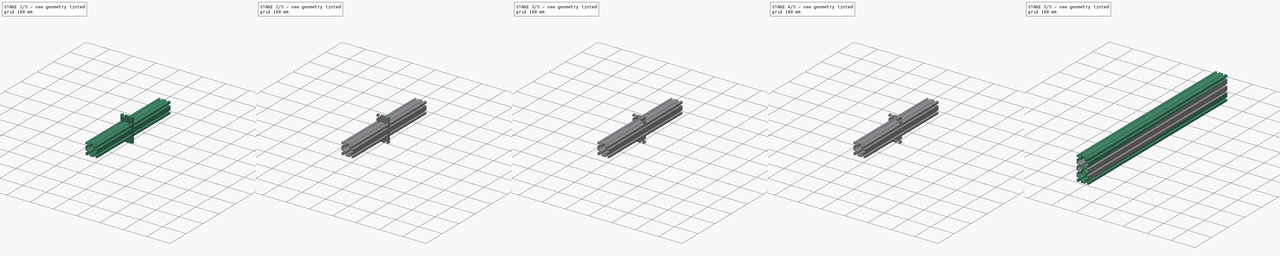
[diagram: build sequence overview — one tinted view per stage of 5, left to right]
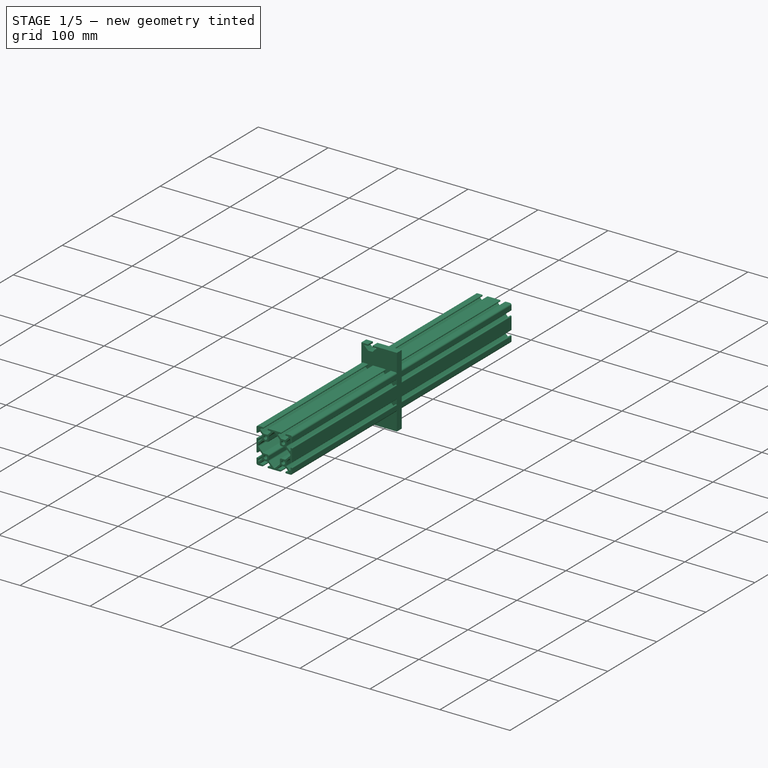
[diagram: stage 1 of 5 — iso view after this stage's code; geometry added in this stage tinted green]
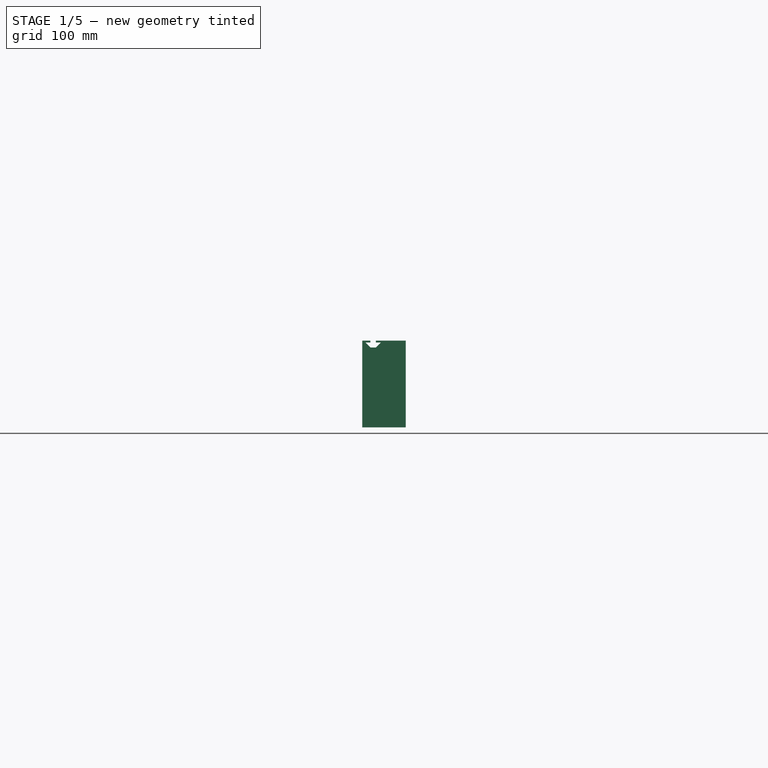
[diagram: stage 1 of 5 — front view after this stage's code; geometry added in this stage tinted green]
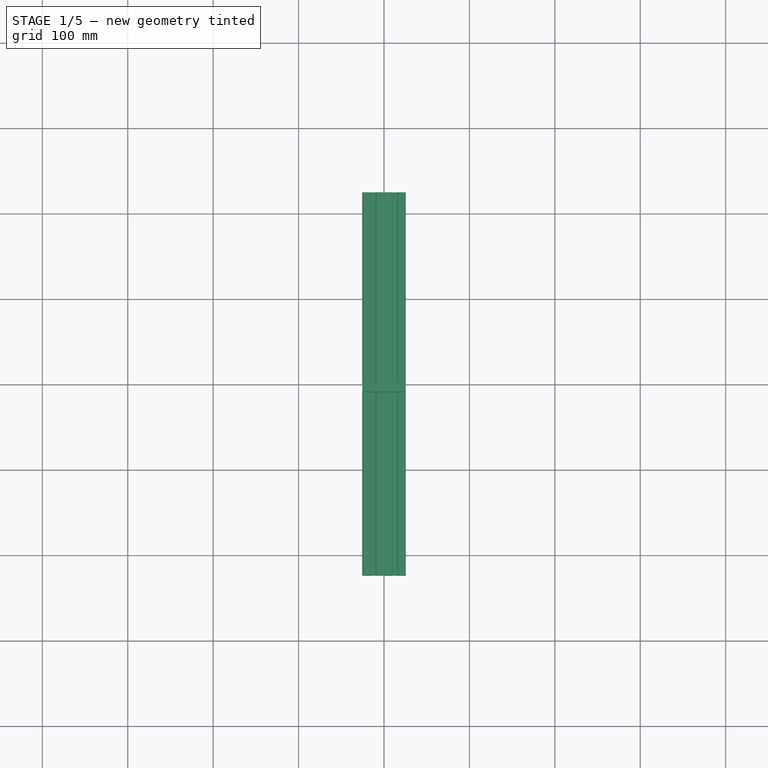
[diagram: stage 1 of 5 — top view after this stage's code; geometry added in this stage tinted green]
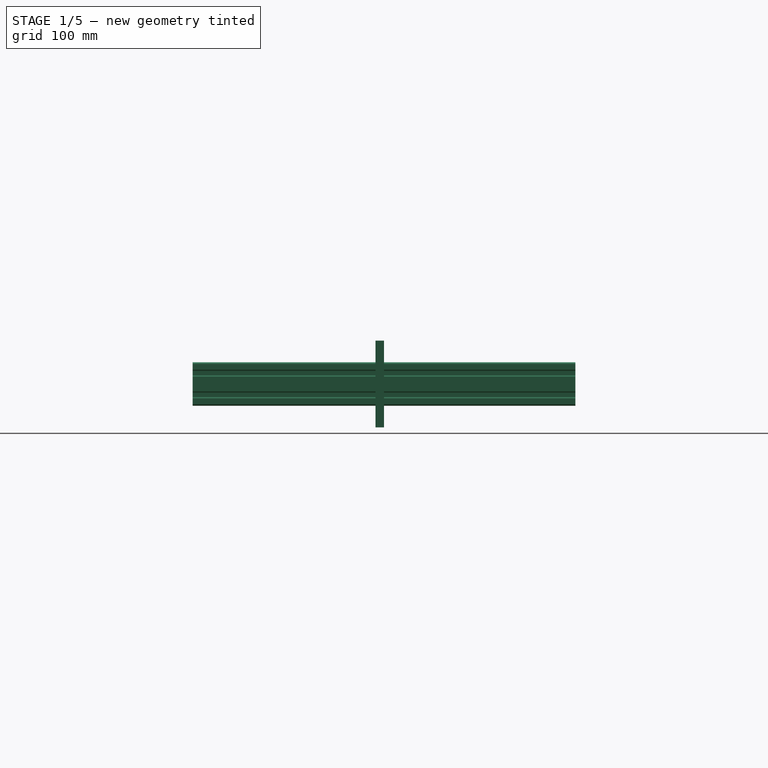
[diagram: stage 1 of 5 — right view after this stage's code; geometry added in this stage tinted green]
FCSTD DOCUMENT  (FreeCAD 2021.614R24301 +3747 (Git))
Label: Extrusion
License: Creative Commons Attribution
LicenseURL: http://creativecommons.org/licenses/by/4.0/
objects: Sketcher::SketchObject×12, PartDesign::Fillet×8, PartDesign::Pocket×6, PartDesign::Pad×5, PartDesign::Body×5, PartDesign::Mirrored×5, PartDesign::ShapeBinder×3, PartDesign::MultiTransform×2, PartDesign::LinearPattern×1, App::DocumentObjectGroup×1
note: 101 computed .brp shape members not serialized (recipe doc carries the construction recipe); baked Part::Feature solids carry a one-line shape summary decoded from their .brp

FEATURE [Sketcher::SketchObject] Sketch
  FullyConstrained = false
  MapMode = 5
  Placement = pos=(0,0,0) rot=(1,0,0;1.5708rad)
  sketch-geometry (173):
    g0: LineSegment [constr] StartX=-25.4 StartY=25.4 StartZ=0 EndX=25.4 EndY=25.4 EndZ=0
    g1: LineSegment [constr] StartX=25.4 StartY=25.4 StartZ=0 EndX=25.4 EndY=-25.4 EndZ=0
    g2: LineSegment [constr] StartX=25.4 StartY=-25.4 StartZ=0 EndX=-25.4 EndY=-25.4 EndZ=0
    g3: LineSegment [constr] StartX=-25.4 StartY=-25.4 StartZ=0 EndX=-25.4 EndY=25.4 EndZ=0
    g4: Circle CenterX=-12.7 CenterY=12.7 CenterZ=0 NormalX=0 NormalY=0 NormalZ=1 AngleXU=0 Radius=2.6035
    g5: Circle CenterX=12.7 CenterY=12.7 CenterZ=0 NormalX=0 NormalY=0 NormalZ=1 AngleXU=0 Radius=2.6035
    g6: Circle CenterX=12.7 CenterY=-12.7 CenterZ=0 NormalX=0 NormalY=0 NormalZ=1 AngleXU=0 Radius=2.6035
    g7: Circle CenterX=-12.7 CenterY=-12.7 CenterZ=0 NormalX=0 NormalY=0 NormalZ=1 AngleXU=0 Radius=2.6035
    g8: LineSegment [constr] StartX=-12.7 StartY=12.7 StartZ=0 EndX=12.7 EndY=12.7 EndZ=0
    g9: LineSegment [constr] StartX=12.7 StartY=12.7 StartZ=0 EndX=12.7 EndY=-12.7 EndZ=0
    g10: LineSegment [constr] StartX=-17.3482 StartY=17.3482 StartZ=0 EndX=-8.0518 EndY=17.3482 EndZ=0
    g11: LineSegment StartX=-8.0518 StartY=14.9572 StartZ=0 EndX=-8.0518 EndY=10.0518 EndZ=0
    g12: LineSegment StartX=-10.0518 StartY=8.0518 StartZ=0 EndX=-14.9572 EndY=8.0518 EndZ=0
    g13: LineSegment [constr] StartX=-17.3482 StartY=8.0518 StartZ=0 EndX=-17.3482 EndY=17.3482 EndZ=0
    g14: ArcOfCircle CenterX=-10.0518 CenterY=10.0518 CenterZ=0 NormalX=0 NormalY=0 NormalZ=1 AngleXU=0 Radius=2 StartAngle=4.71239 EndAngle=6.28319
    g15: GeomPoint [constr] X=-8.0518 Y=8.0518 Z=0
    g16: LineSegment StartX=-25.4 StartY=15.9512 StartZ=0 EndX=-25.4 EndY=23.1902 EndZ=0
    g17: LineSegment StartX=-23.1902 StartY=25.4 StartZ=0 EndX=-15.9512 EndY=25.4 EndZ=0
    g18: LineSegment StartX=-15.9512 StartY=25.4 StartZ=0 EndX=-15.9512 EndY=23.1902 EndZ=0
    g19: LineSegment StartX=-15.9512 StartY=23.1902 StartZ=0 EndX=-21.6276 EndY=23.1902 EndZ=0
    g20: LineSegment StartX=-21.6276 StartY=23.1902 StartZ=0 EndX=-16.3714 EndY=17.934 EndZ=0
    g21: LineSegment StartX=-14.9572 StartY=17.3482 StartZ=0 EndX=-10.4428 EndY=17.3482 EndZ=0
    g22: LineSegment StartX=-9.02858 StartY=17.934 StartZ=0 EndX=-3.77236 EndY=23.1902 EndZ=0
    g23: LineSegment StartX=-3.77236 StartY=23.1902 StartZ=0 EndX=-9.4488 EndY=23.1902 EndZ=0
    g24: LineSegment StartX=-9.4488 StartY=23.1902 StartZ=0 EndX=-9.4488 EndY=25.4 EndZ=0
    g25: LineSegment StartX=-9.4488 StartY=25.4 StartZ=0 EndX=9.4488 EndY=25.4 EndZ=0
    g26: LineSegment StartX=9.4488 StartY=25.4 StartZ=0 EndX=9.4488 EndY=23.1902 EndZ=0
    g27: LineSegment StartX=9.4488 StartY=23.1902 StartZ=0 EndX=3.77236 EndY=23.1902 EndZ=0
    g28: LineSegment StartX=3.77236 StartY=23.1902 StartZ=0 EndX=9.02858 EndY=17.934 EndZ=0
    g29: LineSegment StartX=10.4428 StartY=17.3482 StartZ=0 EndX=14.9572 EndY=17.3482 EndZ=0
    g30: LineSegment StartX=16.3714 StartY=17.934 StartZ=0 EndX=21.6276 EndY=23.1902 EndZ=0
    g31: LineSegment StartX=21.6276 StartY=23.1902 StartZ=0 EndX=15.9512 EndY=23.1902 EndZ=0
    g32: LineSegment StartX=15.9512 StartY=23.1902 StartZ=0 EndX=15.9512 EndY=25.4 EndZ=0
    g33: LineSegment StartX=15.9512 StartY=25.4 StartZ=0 EndX=23.1902 EndY=25.4 EndZ=0
    g34: LineSegment StartX=25.4 StartY=23.1902 StartZ=0 EndX=25.4 EndY=15.9512 EndZ=0
    g35: LineSegment StartX=25.4 StartY=15.9512 StartZ=0 EndX=23.1902 EndY=15.9512 EndZ=0
    g36: LineSegment StartX=23.1902 StartY=15.9512 StartZ=0 EndX=23.1902 EndY=21.6276 EndZ=0
    g37: LineSegment StartX=23.1902 StartY=21.6276 StartZ=0 EndX=17.934 EndY=16.3714 EndZ=0
    g38: LineSegment StartX=17.3482 StartY=14.9572 StartZ=0 EndX=17.3482 EndY=10.4428 EndZ=0
    g39: LineSegment StartX=17.934 StartY=9.02858 StartZ=0 EndX=23.1902 EndY=3.77236 EndZ=0
    g40: LineSegment StartX=23.1902 StartY=3.77236 StartZ=0 EndX=23.1902 EndY=9.4488 EndZ=0
    g41: LineSegment StartX=23.1902 StartY=9.4488 StartZ=0 EndX=25.4 EndY=9.4488 EndZ=0
    g42: LineSegment StartX=25.4 StartY=9.4488 StartZ=0 EndX=25.4 EndY=-9.4488 EndZ=0
    g43: LineSegment StartX=25.4 StartY=-9.4488 StartZ=0 EndX=23.1902 EndY=-9.4488 EndZ=0
    g44: LineSegment StartX=23.1902 StartY=-9.4488 StartZ=0 EndX=23.1902 EndY=-3.77236 EndZ=0
    g45: LineSegment StartX=23.1902 StartY=-3.77236 StartZ=0 EndX=17.934 EndY=-9.02858 EndZ=0
    g46: LineSegment StartX=17.3482 StartY=-10.4428 StartZ=0 EndX=17.3482 EndY=-14.9572 EndZ=0
    g47: LineSegment StartX=17.934 StartY=-16.3714 StartZ=0 EndX=23.1902 EndY=-21.6276 EndZ=0
    g48: LineSegment StartX=23.1902 StartY=-21.6276 StartZ=0 EndX=23.1902 EndY=-15.9512 EndZ=0
    g49: LineSegment StartX=23.1902 StartY=-15.9512 StartZ=0 EndX=25.4 EndY=-15.9512 EndZ=0
    g50: LineSegment StartX=25.4 StartY=-15.9512 StartZ=0 EndX=25.4 EndY=-23.1902 EndZ=0
    g51: LineSegment StartX=23.1902 StartY=-25.4 StartZ=0 EndX=15.9512 EndY=-25.4 EndZ=0
    g52: LineSegment StartX=15.9512 StartY=-25.4 StartZ=0 EndX=15.9512 EndY=-23.1902 EndZ=0
    g53: LineSegment StartX=15.9512 StartY=-23.1902 StartZ=0 EndX=21.6276 EndY=-23.1902 EndZ=0
    g54: LineSegment StartX=21.6276 StartY=-23.1902 StartZ=0 EndX=16.3714 EndY=-17.934 EndZ=0
    g55: LineSegment StartX=14.9572 StartY=-17.3482 StartZ=0 EndX=10.4428 EndY=-17.3482 EndZ=0
    g56: LineSegment StartX=9.02858 StartY=-17.934 StartZ=0 EndX=3.77236 EndY=-23.1902 EndZ=0
    g57: LineSegment StartX=3.77236 StartY=-23.1902 StartZ=0 EndX=9.4488 EndY=-23.1902 EndZ=0
    g58: LineSegment StartX=9.4488 StartY=-23.1902 StartZ=0 EndX=9.4488 EndY=-25.4 EndZ=0
    g59: LineSegment StartX=9.4488 StartY=-25.4 StartZ=0 EndX=-9.4488 EndY=-25.4 EndZ=0
    g60: LineSegment StartX=-9.4488 StartY=-25.4 StartZ=0 EndX=-9.4488 EndY=-23.1902 EndZ=0
    g61: LineSegment StartX=-9.4488 StartY=-23.1902 StartZ=0 EndX=-3.77236 EndY=-23.1902 EndZ=0
    g62: LineSegment StartX=-3.77236 StartY=-23.1902 StartZ=0 EndX=-9.02858 EndY=-17.934 EndZ=0
    g63: LineSegment StartX=-10.4428 StartY=-17.3482 StartZ=0 EndX=-14.9572 EndY=-17.3482 EndZ=0
    g64: LineSegment StartX=-16.3714 StartY=-17.934 StartZ=0 EndX=-21.6276 EndY=-23.1902 EndZ=0
    g65: LineSegment StartX=-21.6276 StartY=-23.1902 StartZ=0 EndX=-15.9512 EndY=-23.1902 EndZ=0
    g66: LineSegment StartX=-15.9512 StartY=-23.1902 StartZ=0 EndX=-15.9512 EndY=-25.4 EndZ=0
    g67: LineSegment StartX=-15.9512 StartY=-25.4 StartZ=0 EndX=-23.1902 EndY=-25.4 EndZ=0
    g68: LineSegment StartX=-25.4 StartY=-23.1902 StartZ=0 EndX=-25.4 EndY=-15.9512 EndZ=0
    g69: LineSegment StartX=-25.4 StartY=-15.9512 StartZ=0 EndX=-23.1902 EndY=-15.9512 EndZ=0
    g70: LineSegment StartX=-23.1902 StartY=-15.9512 StartZ=0 EndX=-23.1902 EndY=-21.6276 EndZ=0
    g71: LineSegment StartX=-23.1902 StartY=-21.6276 StartZ=0 EndX=-17.934 EndY=-16.3714 EndZ=0
    g72: LineSegment StartX=-17.3482 StartY=-14.9572 StartZ=0 EndX=-17.3482 EndY=-10.4428 EndZ=0
    g73: LineSegment StartX=-17.934 StartY=-9.02858 StartZ=0 EndX=-23.1902 EndY=-3.77236 EndZ=0
    g74: LineSegment StartX=-23.1902 StartY=-3.77236 StartZ=0 EndX=-23.1902 EndY=-9.4488 EndZ=0
    g75: LineSegment StartX=-23.1902 StartY=-9.4488 StartZ=0 EndX=-25.4 EndY=-9.4488 EndZ=0
    g76: LineSegment StartX=-25.4 StartY=-9.4488 StartZ=0 EndX=-25.4 EndY=9.4488 EndZ=0
    g77: LineSegment StartX=-25.4 StartY=9.4488 StartZ=0 EndX=-23.1902 EndY=9.4488 EndZ=0
    g78: LineSegment StartX=-23.1902 StartY=9.4488 StartZ=0 EndX=-23.1902 EndY=3.77236 EndZ=0
    g79: LineSegment StartX=-23.1902 StartY=3.77236 StartZ=0 EndX=-17.934 EndY=9.02858 EndZ=0
    g80: LineSegment StartX=-17.3482 StartY=10.4428 StartZ=0 EndX=-17.3482 EndY=14.9572 EndZ=0
    g81: LineSegment StartX=-17.934 StartY=16.3714 StartZ=0 EndX=-23.1902 EndY=21.6276 EndZ=0
    g82: LineSegment StartX=-23.1902 StartY=21.6276 StartZ=0 EndX=-23.1902 EndY=15.9512 EndZ=0
    g83: LineSegment StartX=-23.1902 StartY=15.9512 StartZ=0 EndX=-25.4 EndY=15.9512 EndZ=0
    g84: GeomPoint [constr] X=-25.4 Y=12.7 Z=0
    g85: GeomPoint [constr] X=-12.7 Y=25.4 Z=0
    g86: GeomPoint [constr] X=-12.7 Y=17.3482 Z=0
    g87: GeomPoint [constr] X=-17.3482 Y=12.7 Z=0
    g88: GeomPoint [constr] X=12.7 Y=17.3482 Z=0
    g89: GeomPoint [constr] X=-17.3482 Y=-12.7 Z=0
    g90: ArcOfCircle CenterX=-23.1902 CenterY=23.1902 CenterZ=0 NormalX=0 NormalY=0 NormalZ=1 AngleXU=0 Radius=2.2098 StartAngle=1.5708 EndAngle=3.14159
    g91: GeomPoint [constr] X=-25.4 Y=25.4 Z=0
    g92: ArcOfCircle CenterX=23.1902 CenterY=23.1902 CenterZ=0 NormalX=0 NormalY=0 NormalZ=1 AngleXU=0 Radius=2.2098 StartAngle=0 EndAngle=1.5708
    g93: GeomPoint [constr] X=25.4 Y=25.4 Z=0
    g94: ArcOfCircle CenterX=23.1902 CenterY=-23.1902 CenterZ=0 NormalX=0 NormalY=0 NormalZ=1 AngleXU=0 Radius=2.2098 StartAngle=4.71239 EndAngle=6.28319
    g95: GeomPoint [constr] X=25.4 Y=-25.4 Z=0
    g96: ArcOfCircle CenterX=-23.1902 CenterY=-23.1902 CenterZ=0 NormalX=0 NormalY=0 NormalZ=1 AngleXU=0 Radius=2.2098 StartAngle=3.14159 EndAngle=4.71239
    g97: GeomPoint [constr] X=-25.4 Y=-25.4 Z=0
    g98: LineSegment StartX=1.41421 StartY=-22.4232 StartZ=0 EndX=7.46601 EndY=-16.3714 EndZ=0
    g99: LineSegment StartX=8.0518 StartY=-14.9572 StartZ=0 EndX=8.0518 EndY=-10.0518 EndZ=0
    g100: LineSegment StartX=10.0518 StartY=-8.0518 StartZ=0 EndX=14.9572 EndY=-8.0518 EndZ=0
    g101: LineSegment StartX=16.3714 StartY=-7.46601 StartZ=0 EndX=22.4232 EndY=-1.41421 EndZ=0
    g102: LineSegment StartX=22.4232 StartY=1.41421 StartZ=0 EndX=16.3714 EndY=7.46601 EndZ=0
    g103: LineSegment StartX=14.9572 StartY=8.0518 StartZ=0 EndX=10.0518 EndY=8.0518 EndZ=0
    g104: LineSegment StartX=8.0518 StartY=10.0518 StartZ=0 EndX=8.0518 EndY=14.9572 EndZ=0
    g105: LineSegment StartX=7.46601 StartY=16.3714 StartZ=0 EndX=1.41421 EndY=22.4232 EndZ=0
    g106: LineSegment StartX=-1.41421 StartY=22.4232 StartZ=0 EndX=-7.46601 EndY=16.3714 EndZ=0
    g107: LineSegment StartX=-16.3714 StartY=7.46601 StartZ=0 EndX=-22.4232 EndY=1.41421 EndZ=0
    g108: LineSegment StartX=-22.4232 StartY=-1.41421 StartZ=0 EndX=-16.3714 EndY=-7.46601 EndZ=0
    g109: LineSegment StartX=-14.9572 StartY=-8.0518 StartZ=0 EndX=-10.0518 EndY=-8.0518 EndZ=0
    g110: LineSegment StartX=-8.0518 StartY=-10.0518 StartZ=0 EndX=-8.0518 EndY=-14.9572 EndZ=0
    g111: LineSegment StartX=-7.46601 StartY=-16.3714 StartZ=0 EndX=-1.41421 EndY=-22.4232 EndZ=0
    g112: ArcOfCircle CenterX=-10.0518 CenterY=-10.0518 CenterZ=0 NormalX=0 NormalY=0 NormalZ=1 AngleXU=0 Radius=2 StartAngle=0 EndAngle=1.5708
    g113: ArcOfCircle CenterX=10.0518 CenterY=-10.0518 CenterZ=0 NormalX=0 NormalY=0 NormalZ=1 AngleXU=0 Radius=2 StartAngle=1.5708 EndAngle=3.14159
    g114: ArcOfCircle CenterX=10.0518 CenterY=10.0518 CenterZ=0 NormalX=0 NormalY=0 NormalZ=1 AngleXU=0 Radius=2 StartAngle=3.14159 EndAngle=4.71239
    g115: ArcOfCircle CenterX=0 CenterY=21.009 CenterZ=0 NormalX=0 NormalY=0 NormalZ=1 AngleXU=0 Radius=2 StartAngle=0.785398 EndAngle=2.35619
    g116: GeomPoint [constr] X=0 Y=23.8374 Z=0
    g117: ArcOfCircle CenterX=21.009 CenterY=0 CenterZ=0 NormalX=0 NormalY=0 NormalZ=1 AngleXU=0 Radius=2 StartAngle=5.49779 EndAngle=7.06858
    g118: GeomPoint [constr] X=23.8374 Y=0 Z=0
    g119: ArcOfCircle CenterX=-21.009 CenterY=0 CenterZ=0 NormalX=0 NormalY=0 NormalZ=1 AngleXU=0 Radius=2 StartAngle=2.35619 EndAngle=3.92699
    g120: GeomPoint [constr] X=-23.8374 Y=0 Z=0
    g121: ArcOfCircle CenterX=0 CenterY=-21.009 CenterZ=0 NormalX=0 NormalY=0 NormalZ=1 AngleXU=0 Radius=2 StartAngle=3.92699 EndAngle=5.49779
    g122: GeomPoint [constr] X=0 Y=-23.8374 Z=0
    g123: LineSegment [constr] StartX=-8.0518 StartY=17.3482 StartZ=0 EndX=-8.0518 EndY=15.7856 EndZ=0
    g124: LineSegment [constr] StartX=-15.7856 StartY=8.0518 StartZ=0 EndX=-17.3482 EndY=8.0518 EndZ=0
    g125: ArcOfCircle CenterX=-6.0518 CenterY=14.9572 CenterZ=0 NormalX=0 NormalY=0 NormalZ=1 AngleXU=0 Radius=2 StartAngle=2.35619 EndAngle=3.14159
    g126: GeomPoint [constr] X=-8.0518 Y=15.7856 Z=0
    g127: ArcOfCircle CenterX=6.0518 CenterY=14.9572 CenterZ=0 NormalX=0 NormalY=0 NormalZ=1 AngleXU=0 Radius=2 StartAngle=3e-16 EndAngle=0.785398
    g128: GeomPoint [constr] X=8.0518 Y=15.7856 Z=0
    g129: ArcOfCircle CenterX=-14.9572 CenterY=6.0518 CenterZ=0 NormalX=0 NormalY=0 NormalZ=1 AngleXU=0 Radius=2 StartAngle=1.5708 EndAngle=2.35619
    g130: GeomPoint [constr] X=-15.7856 Y=8.0518 Z=0
    g131: ArcOfCircle CenterX=-14.9572 CenterY=-6.0518 CenterZ=0 NormalX=0 NormalY=0 NormalZ=1 AngleXU=0 Radius=2 StartAngle=3.92699 EndAngle=4.71239
    g132: GeomPoint [constr] X=-15.7856 Y=-8.0518 Z=0
    g133: ArcOfCircle CenterX=14.9572 CenterY=6.0518 CenterZ=0 NormalX=0 NormalY=0 NormalZ=1 AngleXU=0 Radius=2 StartAngle=0.785398 EndAngle=1.5708
    g134: GeomPoint [constr] X=15.7856 Y=8.0518 Z=0
    g135: ArcOfCircle CenterX=14.9572 CenterY=-6.0518 CenterZ=0 NormalX=0 NormalY=0 NormalZ=1 AngleXU=0 Radius=2 StartAngle=4.71239 EndAngle=5.49779
    g136: GeomPoint [constr] X=15.7856 Y=-8.0518 Z=0
    g137: ArcOfCircle CenterX=-6.0518 CenterY=-14.9572 CenterZ=0 NormalX=0 NormalY=0 NormalZ=1 AngleXU=0 Radius=2 StartAngle=3.14159 EndAngle=3.92699
    g138: GeomPoint [constr] X=-8.0518 Y=-15.7856 Z=0
    g139: ArcOfCircle CenterX=6.0518 CenterY=-14.9572 CenterZ=0 NormalX=0 NormalY=0 NormalZ=1 AngleXU=0 Radius=2 StartAngle=5.49779 EndAngle=6.28319
    g140: GeomPoint [constr] X=8.0518 Y=-15.7856 Z=0
    g141: ArcOfCircle CenterX=10.4428 CenterY=19.3482 CenterZ=0 NormalX=0 NormalY=0 NormalZ=1 AngleXU=0 Radius=2 StartAngle=3.92699 EndAngle=4.71239
    g142: GeomPoint [constr] X=9.61436 Y=17.3482 Z=0
    g143: ArcOfCircle CenterX=14.9572 CenterY=19.3482 CenterZ=0 NormalX=0 NormalY=0 NormalZ=1 AngleXU=0 Radius=2 StartAngle=4.71239 EndAngle=5.49779
    g144: GeomPoint [constr] X=15.7856 Y=17.3482 Z=0
    g145: ArcOfCircle CenterX=19.3482 CenterY=14.9572 CenterZ=0 NormalX=0 NormalY=0 NormalZ=1 AngleXU=0 Radius=2 StartAngle=2.35619 EndAngle=3.14159
    g146: GeomPoint [constr] X=17.3482 Y=15.7856 Z=0
    g147: ArcOfCircle CenterX=19.3482 CenterY=10.4428 CenterZ=0 NormalX=0 NormalY=0 NormalZ=1 AngleXU=0 Radius=2 StartAngle=3.14159 EndAngle=3.92699
    g148: GeomPoint [constr] X=17.3482 Y=9.61436 Z=0
    g149: ArcOfCircle CenterX=-10.4428 CenterY=19.3482 CenterZ=0 NormalX=0 NormalY=0 NormalZ=1 AngleXU=0 Radius=2 StartAngle=4.71239 EndAngle=5.49779
    g150: GeomPoint [constr] X=-9.61436 Y=17.3482 Z=0
    g151: ArcOfCircle CenterX=-14.9572 CenterY=19.3482 CenterZ=0 NormalX=0 NormalY=0 NormalZ=1 AngleXU=0 Radius=2 StartAngle=3.92699 EndAngle=4.71239
    g152: GeomPoint [constr] X=-15.7856 Y=17.3482 Z=0
    g153: ArcOfCircle CenterX=-19.3482 CenterY=14.9572 CenterZ=0 NormalX=0 NormalY=0 NormalZ=1 AngleXU=0 Radius=2 StartAngle=0 EndAngle=0.785398
    g154: GeomPoint [constr] X=-17.3482 Y=15.7856 Z=0
    g155: ArcOfCircle CenterX=-19.3482 CenterY=10.4428 CenterZ=0 NormalX=0 NormalY=0 NormalZ=1 AngleXU=0 Radius=2 StartAngle=5.49779 EndAngle=6.28319
    g156: GeomPoint [constr] X=-17.3482 Y=9.61436 Z=0
    g157: ArcOfCircle CenterX=-19.3482 CenterY=-10.4428 CenterZ=0 NormalX=0 NormalY=0 NormalZ=1 AngleXU=0 Radius=2 StartAngle=0 EndAngle=0.785398
    g158: GeomPoint [constr] X=-17.3482 Y=-9.61436 Z=0
    g159: ArcOfCircle CenterX=-19.3482 CenterY=-14.9572 CenterZ=0 NormalX=0 NormalY=0 NormalZ=1 AngleXU=0 Radius=2 StartAngle=5.49779 EndAngle=6.28319
    g160: GeomPoint [constr] X=-17.3482 Y=-15.7856 Z=0
    g161: ArcOfCircle CenterX=-14.9572 CenterY=-19.3482 CenterZ=0 NormalX=0 NormalY=0 NormalZ=1 AngleXU=0 Radius=2 StartAngle=1.5708 EndAngle=2.35619
    g162: GeomPoint [constr] X=-15.7856 Y=-17.3482 Z=0
    g163: ArcOfCircle CenterX=-10.4428 CenterY=-19.3482 CenterZ=0 NormalX=0 NormalY=0 NormalZ=1 AngleXU=0 Radius=2 StartAngle=0.785398 EndAngle=1.5708
    g164: GeomPoint [constr] X=-9.61436 Y=-17.3482 Z=0
    g165: ArcOfCircle CenterX=10.4428 CenterY=-19.3482 CenterZ=0 NormalX=0 NormalY=0 NormalZ=1 AngleXU=0 Radius=2 StartAngle=1.5708 EndAngle=2.35619
    g166: GeomPoint [constr] X=9.61436 Y=-17.3482 Z=0
    g167: ArcOfCircle CenterX=14.9572 CenterY=-19.3482 CenterZ=0 NormalX=0 NormalY=0 NormalZ=1 AngleXU=0 Radius=2 StartAngle=0.785398 EndAngle=1.5708
    g168: GeomPoint [constr] X=15.7856 Y=-17.3482 Z=0
    g169: ArcOfCircle CenterX=19.3482 CenterY=-14.9572 CenterZ=0 NormalX=0 NormalY=0 NormalZ=1 AngleXU=0 Radius=2 StartAngle=3.14159 EndAngle=3.92699
    g170: GeomPoint [constr] X=17.3482 Y=-15.7856 Z=0
    g171: ArcOfCircle CenterX=19.3482 CenterY=-10.4428 CenterZ=0 NormalX=0 NormalY=0 NormalZ=1 AngleXU=0 Radius=2 StartAngle=2.35619 EndAngle=3.14159
    g172: GeomPoint [constr] X=17.3482 Y=-9.61436 Z=0
  constraints (429):
    c: Coincident(g0,g1)
    c: Coincident(g1,g2)
    c: Coincident(g2,g3)
    c: Horizontal(g0)
    c: Horizontal(g2)
    c: Vertical(g1)
    c: Vertical(g3)
    c: Symmetric(g0,g1,g-1)
    c: Equal(g0,g1)
    c: DistanceX(g0,g0) = 50.8
    c: Vertical(g6,g5)
    c: Vertical(g4,g7)
    c: Horizontal(g7,g6)
    c: Horizontal(g4,g5)
    c: Symmetric(g4,g6,g-1)
    c: Equal(g4,g5)
    c: Equal(g5,g6)
    c: Equal(g6,g7)
    c: Diameter(g5) = 5.207
    c: Coincident(g8,g4)
    c: Coincident(g8,g5)
    c: Coincident(g9,g5)
    c: Coincident(g9,g6)
    c: Equal(g9,g8)
    c: DistanceX(g8,g8) = 25.4
    c: Coincident(g13,g10)
    c: Horizontal(g10)
    c: Horizontal(g12)
    c: Vertical(g11)
    c: Vertical(g13)
    c: PointOnObject(g15,g11)
    c: PointOnObject(g15,g12)
    c: Tangent(g11,g14) = 1.5708
    c: Tangent(g12,g14) = 1.5708
    c: Diameter(g14) = 4
    c: PointOnObject(g16,g3)
    c: PointOnObject(g17,g0)
    c: Coincident(g17,g18)
    c: Vertical(g18)
    c: Coincident(g18,g19)
    c: Horizontal(g19)
    c: Coincident(g19,g20)
    c: Horizontal(g21)
    c: Coincident(g22,g23)
    c: Horizontal(g23)
    c: Coincident(g23,g24)
    c: PointOnObject(g24,g0)
    c: Vertical(g24)
    c: Coincident(g24,g25)
    c: PointOnObject(g25,g0)
    c: Coincident(g25,g26)
    c: Vertical(g26)
    c: Coincident(g26,g27)
    c: Horizontal(g27)
    c: Coincident(g27,g28)
    c: Horizontal(g29)
    c: Coincident(g30,g31)
    c: Coincident(g31,g32)
    c: PointOnObject(g32,g0)
    c: Coincident(g32,g33)
    c: Horizontal(g33)
    c: Vertical(g34)
    c: Coincident(g34,g35)
    c: Coincident(g35,g36)
    c: Vertical(g36)
    c: Coincident(g36,g37)
    c: Vertical(g38)
    c: Coincident(g39,g40)
    c: Vertical(g40)
    c: Coincident(g40,g41)
    c: Coincident(g41,g42)
    c: Vertical(g42)
    c: Coincident(g42,g43)
    c: Coincident(g43,g44)
    c: Coincident(g44,g45)
    c: Vertical(g46)
    c: Coincident(g47,g48)
    c: Coincident(g48,g49)
    c: Horizontal(g49)
    c: Coincident(g49,g50)
    c: Vertical(g50)
    c: Horizontal(g51)
    c: Coincident(g51,g52)
    c: Coincident(g52,g53)
    c: Coincident(g53,g54)
    c: Horizontal(g55)
    c: Coincident(g56,g57)
    c: Horizontal(g57)
    c: Coincident(g57,g58)
    c: Coincident(g58,g59)
    c: Coincident(g59,g60)
    c: Coincident(g60,g61)
    c: Horizontal(g61)
    c: Coincident(g61,g62)
    c: Horizontal(g63)
    c: Coincident(g64,g65)
    c: Horizontal(g65)
    c: Coincident(g65,g66)
    c: Coincident(g66,g67)
    c: Horizontal(g67)
    c: Vertical(g68)
    c: Coincident(g68,g69)
    c: Horizontal(g69)
    c: Coincident(g69,g70)
    c: Coincident(g70,g71)
    c: Vertical(g72)
    c: Coincident(g73,g74)
    c: Coincident(g74,g75)
    c: Coincident(g75,g76)
    c: Coincident(g76,g77)
    c: Horizontal(g77)
    c: Coincident(g77,g78)
    c: Vertical(g78)
    c: Coincident(g78,g79)
    c: Vertical(g80)
    c: Coincident(g81,g82)
    c: Coincident(g82,g83)
    c: Coincident(g83,g16)
    c: Vertical(g82)
    c: Vertical(g70)
    c: Vertical(g74)
    c: Vertical(g60)
    c: Vertical(g66)
    c: Vertical(g58)
    c: Vertical(g52)
    c: Horizontal(g53)
    c: Vertical(g48)
    c: Vertical(g44)
    c: Horizontal(g43)
    c: Horizontal(g41)
    c: Horizontal(g35)
    c: Horizontal(g31)
    c: Vertical(g32)
    c: Horizontal(g18,g23)
    c: Horizontal(g23,g26)
    c: Horizontal(g26,g31)
    c: Vertical(g35,g40)
    c: Vertical(g40,g43)
    c: Vertical(g43,g48)
    c: Horizontal(g52,g57)
    c: Horizontal(g57,g60)
    c: Horizontal(g60,g65)
    c: Vertical(g69,g74)
    c: Vertical(g74,g77)
    c: Vertical(g77,g82)
    c: Horizontal(g83)
    c: Horizontal(g75)
    c: Equal(g76,g42)
    c: Equal(g42,g25)
    c: Equal(g25,g59)
    c: Symmetric(g58,g59,g-2)
    c: Vertical(g24,g59)
    c: Vertical(g51,g32)
    c: Vertical(g66,g17)
    c: Symmetric(g76,g75,g-1)
    c: Horizontal(g76,g41)
    c: Horizontal(g68,g49)
    c: Horizontal(g34,g16)
    c: Equal(g19,g23)
    c: Equal(g23,g27)
    c: Equal(g27,g31)
    c: Equal(g31,g36)
    c: Equal(g36,g40)
    c: Equal(g40,g44)
    c: Equal(g44,g48)
    c: Equal(g48,g53)
    c: Equal(g53,g57)
    c: Equal(g57,g61)
    c: Equal(g61,g65)
    c: Equal(g65,g70)
    c: Equal(g70,g74)
    c: Equal(g74,g78)
    c: Equal(g78,g82)
    c: Equal(g83,g18)
    c: Equal(g18,g35)
    c: Equal(g35,g52)
    c: Vertical(g16)
    c: PointOnObject(g76,g3)
    c: PointOnObject(g68,g3)
    c: PointOnObject(g34,g1)
    c: PointOnObject(g41,g1)
    c: PointOnObject(g49,g1)
    c: PointOnObject(g95,g2)
    c: PointOnObject(g58,g2)
    c: PointOnObject(g66,g2)
    c: Vertical(g154,g158)
    c: Vertical(g146,g172)
    c: Horizontal(g168,g164)
    c: Horizontal(g150,g142)
    c: Vertical(g154,g10)
    c: DistanceY(g-1,g84) = 12.7
    c: Symmetric(g16,g76,g84)
    c: DistanceY(g76,g16) = 6.5024
    c: Coincident(g91,g0)
    c: DistanceX(g16,g82) = 2.2098
    c: Horizontal(g152,g10)
    c: Equal(g13,g10)
    c: Symmetric(g10,g15,g4)
    c: DistanceX(g77,g156) = 5.842
    c: Parallel(g81,g20)
    c: Vertical(g85,g4)
    c: Symmetric(g17,g24,g85)
    c: Vertical(g152,g162)
    c: Vertical(g142,g166)
    c: Horizontal(g160,g170)
    c: Horizontal(g156,g148)
    c: Horizontal(g87,g4)
    c: Vertical(g86,g4)
    c: Symmetric(g152,g150,g86)
    c: Symmetric(g154,g156,g87)
    c: Vertical(g88,g5)
    c: Symmetric(g144,g142,g88)
    c: Parallel(g37,g30)
    c: Distance(g81,g19) = 2.2098
    c: Horizontal(g89,g7)
    c: Symmetric(g158,g160,g89)
    c: Parallel(g64,g71)
    c: PointOnObject(g91,g16)
    c: PointOnObject(g91,g17)
    c: Tangent(g16,g90) = 1.5708
    c: Tangent(g17,g90) = 1.5708
    c: PointOnObject(g93,g33)
    c: PointOnObject(g93,g34)
    c: Tangent(g33,g92) = 1.5708
    c: Tangent(g34,g92) = 1.5708
    c: PointOnObject(g95,g51)
    c: PointOnObject(g95,g50)
    c: Tangent(g51,g94) = 1.5708
    c: Tangent(g50,g94) = 1.5708
    c: PointOnObject(g97,g68)
    c: PointOnObject(g97,g67)
    c: Tangent(g68,g96) = 1.5708
    c: Tangent(g67,g96) = 1.5708
    c: Radius(g96) = 2.2098
    c: Equal(g96,g94)
    c: Equal(g96,g92)
    c: Equal(g96,g90)
    c: Equal(g68,g67)
    c: Equal(g51,g50)
    c: Vertical(g99)
    c: Horizontal(g100)
    c: Horizontal(g103)
    c: Vertical(g104)
    c: PointOnObject(g116,g-2)
    c: Horizontal(g109)
    c: Vertical(g110)
    c: PointOnObject(g122,g-2)
    c: PointOnObject(g118,g-1)
    c: Tangent(g109,g112) = 1.5708
    c: Tangent(g110,g112) = 1.5708
    c: Tangent(g99,g113) = 1.5708
    c: Tangent(g100,g113) = 1.5708
    c: Tangent(g104,g114) = 1.5708
    c: Tangent(g103,g114) = 1.5708
    c: Horizontal(g14,g114)
    c: Vertical(g14,g112)
    c: Vertical(g114,g113)
    c: Horizontal(g112,g113)
    c: Equal(g14,g114)
    c: Equal(g114,g113)
    c: Equal(g113,g112)
    c: PointOnObject(g116,g106)
    c: PointOnObject(g116,g105)
    c: Tangent(g106,g115) = -1.5708
    c: Tangent(g105,g115) = -1.5708
    c: PointOnObject(g118,g102)
    c: PointOnObject(g118,g101)
    c: Tangent(g102,g117) = -1.5708
    c: Tangent(g101,g117) = -1.5708
    c: PointOnObject(g120,g107)
    c: PointOnObject(g120,g108)
    c: Tangent(g107,g119) = -1.5708
    c: Tangent(g108,g119) = -1.5708
    c: PointOnObject(g122,g111)
    c: PointOnObject(g122,g98)
    c: Tangent(g111,g121) = -1.5708
    c: Tangent(g98,g121) = -1.5708
    c: Equal(g117,g119)
    c: Equal(g119,g121)
    c: Equal(g121,g115)
    c: Equal(g115,g14)
    c: Vertical(g115,g116)
    c: Vertical(g116,g121)
    c: Horizontal(g119,g120)
    c: Horizontal(g120,g117)
    c: Parallel(g106,g22)
    c: Horizontal(g154,g126)
    c: Horizontal(g138,g160)
    c: Vertical(g132,g162)
    c: Vertical(g136,g168)
    c: Coincident(g123,g10)
    c: Coincident(g123,g126)
    c: Vertical(g123)
    c: Coincident(g124,g130)
    c: Coincident(g124,g13)
    c: Horizontal(g124)
    c: PointOnObject(g126,g11)
    c: PointOnObject(g126,g106)
    c: Tangent(g11,g125) = -1.5708
    c: Tangent(g106,g125) = -1.5708
    c: PointOnObject(g128,g105)
    c: PointOnObject(g128,g104)
    c: Tangent(g105,g127) = -1.5708
    c: Tangent(g104,g127) = -1.5708
    c: Equal(g125,g127)
    c: Equal(g127,g115)
    c: PointOnObject(g130,g107)
    c: PointOnObject(g130,g12)
    c: Tangent(g107,g129) = -1.5708
    c: Tangent(g12,g129) = -1.5708
    c: PointOnObject(g132,g108)
    c: PointOnObject(g132,g109)
    c: Tangent(g108,g131) = -1.5708
    c: Tangent(g109,g131) = -1.5708
    c: PointOnObject(g134,g103)
    c: PointOnObject(g134,g102)
    c: Tangent(g103,g133) = -1.5708
    c: Tangent(g102,g133) = -1.5708
    c: PointOnObject(g136,g100)
    c: PointOnObject(g136,g101)
    c: Tangent(g100,g135) = -1.5708
    c: Tangent(g101,g135) = -1.5708
    c: Equal(g129,g131)
    c: Equal(g131,g135)
    c: Equal(g135,g133)
    c: Equal(g133,g125)
    c: Equal(g106,g107)
    c: Equal(g108,g107)
    c: PointOnObject(g120,g-1)
    c: Equal(g102,g107)
    c: Equal(g105,g106)
    c: PointOnObject(g138,g110)
    c: PointOnObject(g138,g111)
    c: Tangent(g110,g137) = -1.5708
    c: Tangent(g111,g137) = -1.5708
    c: PointOnObject(g140,g98)
    c: PointOnObject(g140,g99)
    c: Tangent(g98,g139) = -1.5708
    c: Tangent(g99,g139) = -1.5708
    c: Equal(g98,g111)
    c: Equal(g111,g108)
    c: Equal(g139,g121)
    c: PointOnObject(g142,g28)
    c: PointOnObject(g142,g29)
    c: Tangent(g28,g141) = -1.5708
    c: Tangent(g29,g141) = -1.5708
    c: PointOnObject(g144,g29)
    c: PointOnObject(g144,g30)
    c: Tangent(g29,g143) = -1.5708
    c: Tangent(g30,g143) = -1.5708
    c: PointOnObject(g146,g37)
    c: PointOnObject(g146,g38)
    c: Tangent(g37,g145) = -1.5708
    c: Tangent(g38,g145) = -1.5708
    c: PointOnObject(g148,g38)
    c: PointOnObject(g148,g39)
    c: Tangent(g38,g147) = -1.5708
    c: Tangent(g39,g147) = -1.5708
    c: PointOnObject(g150,g22)
    c: PointOnObject(g150,g21)
    c: Tangent(g22,g149) = -1.5708
    c: Tangent(g21,g149) = -1.5708
    c: PointOnObject(g152,g20)
    c: PointOnObject(g152,g21)
    c: Tangent(g20,g151) = -1.5708
    c: Tangent(g21,g151) = -1.5708
    c: PointOnObject(g154,g81)
    c: PointOnObject(g154,g80)
    c: Tangent(g81,g153) = -1.5708
    c: Tangent(g80,g153) = -1.5708
    c: PointOnObject(g156,g79)
    c: PointOnObject(g156,g80)
    c: Tangent(g79,g155) = -1.5708
    c: Tangent(g80,g155) = -1.5708
    c: Equal(g129,g155)
    c: Equal(g155,g153)
    c: Equal(g153,g151)
    c: Equal(g149,g141)
    c: Equal(g141,g143)
    c: Equal(g143,g145)
    c: Equal(g145,g147)
    c: Equal(g22,g20)
    c: Equal(g20,g81)
    c: Equal(g79,g28)
    c: Equal(g30,g37)
    c: Equal(g103,g12)
    c: PointOnObject(g158,g73)
    c: PointOnObject(g158,g72)
    c: Tangent(g73,g157) = -1.5708
    c: Tangent(g72,g157) = -1.5708
    c: PointOnObject(g160,g71)
    c: PointOnObject(g160,g72)
    c: Tangent(g71,g159) = -1.5708
    c: Tangent(g72,g159) = -1.5708
    c: PointOnObject(g162,g64)
    c: PointOnObject(g162,g63)
    c: Tangent(g64,g161) = -1.5708
    c: Tangent(g63,g161) = -1.5708
    c: PointOnObject(g164,g63)
    c: PointOnObject(g164,g62)
    c: Tangent(g63,g163) = -1.5708
    c: Tangent(g62,g163) = -1.5708
    c: PointOnObject(g166,g56)
    c: PointOnObject(g166,g55)
    c: Tangent(g56,g165) = -1.5708
    c: Tangent(g55,g165) = -1.5708
    c: PointOnObject(g168,g55)
    c: PointOnObject(g168,g54)
    c: Tangent(g55,g167) = -1.5708
    c: Tangent(g54,g167) = -1.5708
    c: PointOnObject(g170,g47)
    c: PointOnObject(g170,g46)
    c: Tangent(g47,g169) = -1.5708
    c: Tangent(g46,g169) = -1.5708
    c: PointOnObject(g172,g46)
    c: PointOnObject(g172,g45)
    c: Tangent(g46,g171) = -1.5708
    c: Tangent(g45,g171) = -1.5708
    c: Equal(g73,g64)
    c: Equal(g64,g56)
    c: Equal(g56,g47)
    c: Equal(g47,g79)
    c: Equal(g161,g159)
    c: Equal(g159,g163)
    c: Equal(g165,g167)
    c: Equal(g167,g169)
    c: Equal(g169,g171)
    c: Equal(g63,g55)
    c: Equal(g46,g55)
FEATURE [PartDesign::Pad] Pad
  ClaimChildren = false
  Direction = (1,1,1)
  Fit = 0
  FitJoin = 0
  InnerFit = 0
  InnerFitJoin = 0
  InnerTaperAngle = 0
  InnerTaperAngleRev = 0
  Length = 10
  Length2 = 100
  Linearize = true
  NewSolid = false
  Placement = pos=(0,0,0) rot=(1,0,0;1.5708rad)
  Profile = -> Sketch
  Refine = true
  Reversed = true
  Suppress = false
  Type = 0
FEATURE [PartDesign::Fillet] Fillet
  Base = -> Pad [Edge254,Edge257,Edge251,Edge8,Edge5,Edge2,Edge233,Edge230,Edge236,Edge221,Edge224,Edge227,Edge203,Edge200,Edge206,Edge185,Edge188,Edge191,Edge164,Edge167,Edge170,Edge155,Edge161,Edge158,Edge134,Edge137,Edge140,Edge119,Edge122,Edge29,Edge26,Edge23,Edge38,Edge35,Edge32,Edge125,Edge104,Edge98,Edge101,Edge89,+8 more]
  BaseFeature = -> Pad
  NewSolid = false
  Placement = pos=(0,0,0) rot=(1,0,0;1.5708rad)
  Radius = 1
  Refine = true
  SupportTransform = false
  Suppress = false
FEATURE [PartDesign::ShapeBinder] ShapeBinder002
  Support = -> [Fillet]
  TraceSupport = false
FEATURE [PartDesign::Pad] Pad003
  ClaimChildren = false
  Direction = (1,1,1)
  Fit = 0
  FitJoin = 0
  InnerFit = 0
  InnerFitJoin = 0
  InnerTaperAngle = 0
  InnerTaperAngleRev = 0
  Length = 448
  Length2 = 100
  Linearize = true
  Midplane = true
  NewSolid = false
  Profile = -> ShapeBinder002
  Refine = true
  Suppress = false
  Type = 0
FEATURE [Sketcher::SketchObject] Sketch001
  ExternalGeometry = -> [Pad001]
  FullyConstrained = true
  MapMode = 5
  Placement = pos=(0,5.6e-15,25.4) rot=(0,0,1;0rad)
  Support = -> [Pad001]
  sketch-geometry (3):
    g0: Circle CenterX=-12.7 CenterY=0 CenterZ=0 NormalX=0 NormalY=0 NormalZ=1 AngleXU=0 Radius=2.5
    g1: GeomPoint [constr] X=-16.9512 Y=0 Z=0
    g2: GeomPoint [constr] X=-8.4488 Y=0 Z=0
  constraints (6):
    c: PointOnObject(g0,g-1)
    c: PointOnObject(g1,g-3)
    c: PointOnObject(g2,g-4)
    c: PointOnObject(g2,g-1)
    c: Symmetric(g1,g2,g0)
    c: Diameter(g0) = 5
FEATURE [Sketcher::SketchObject] Sketch002
  FullyConstrained = true
  MapMode = 5
  Placement = pos=(0,0,0) rot=(1,0,0;1.5708rad)
  Support = -> [XZ_Plane004]
  sketch-geometry (4):
    g0: LineSegment StartX=-25.4 StartY=50.8 StartZ=0 EndX=25.4 EndY=50.8 EndZ=0
    g1: LineSegment StartX=25.4 StartY=50.8 StartZ=0 EndX=25.4 EndY=-50.8 EndZ=0
    g2: LineSegment StartX=25.4 StartY=-50.8 StartZ=0 EndX=-25.4 EndY=-50.8 EndZ=0
    g3: LineSegment StartX=-25.4 StartY=-50.8 StartZ=0 EndX=-25.4 EndY=50.8 EndZ=0
  constraints (11):
    c: Coincident(g0,g1)
    c: Coincident(g1,g2)
    c: Coincident(g2,g3)
    c: Coincident(g3,g0)
    c: Horizontal(g0)
    c: Horizontal(g2)
    c: Vertical(g1)
    c: Vertical(g3)
    c: Symmetric(g1,g0,g-1)
    c: DistanceX(g0,g0) = 50.8
    c: DistanceY(g1,g1) = 101.6
FEATURE [PartDesign::Pad] Pad004
  ClaimChildren = false
  Direction = (1,1,1)
  Fit = 0
  FitJoin = 0
  InnerFit = 0
  InnerFitJoin = 0
  InnerTaperAngle = 0
  InnerTaperAngleRev = 0
  Length = 10
  Length2 = 100
  Linearize = true
  NewSolid = false
  Placement = pos=(0,0,0) rot=(1,0,0;1.5708rad)
  Profile = -> Sketch002
  Refine = true
  Suppress = false
  Type = 0
FEATURE [Sketcher::SketchObject] Sketch003
  ExternalGeometry = -> [Pad004]
  FullyConstrained = true
  MapMode = 5
  Placement = pos=(0,0,0) rot=(1,0,0;1.5708rad)
  Support = -> [XZ_Plane004]
  sketch-geometry (11):
    g0: LineSegment StartX=-15.9512 StartY=50.8 StartZ=0 EndX=-15.9512 EndY=48.5902 EndZ=0
    g1: LineSegment StartX=-15.9512 StartY=48.5902 StartZ=0 EndX=-21.6276 EndY=48.5902 EndZ=0
    g2: LineSegment StartX=-21.6276 StartY=48.5902 StartZ=0 EndX=-15.7856 EndY=42.7482 EndZ=0
    g3: LineSegment StartX=-15.7856 StartY=42.7482 StartZ=0 EndX=-9.61436 EndY=42.7482 EndZ=0
    g4: LineSegment StartX=-9.61436 StartY=42.7482 StartZ=0 EndX=-3.77236 EndY=48.5902 EndZ=0
    g5: LineSegment StartX=-3.77236 StartY=48.5902 StartZ=0 EndX=-9.4488 EndY=48.5902 EndZ=0
    g6: LineSegment StartX=-9.4488 StartY=48.5902 StartZ=0 EndX=-9.4488 EndY=50.8 EndZ=0
    g7: LineSegment StartX=-9.4488 StartY=50.8 StartZ=0 EndX=-15.9512 EndY=50.8 EndZ=0
    g8: GeomPoint [constr] X=-12.7 Y=50.8 Z=0
    g9: LineSegment [constr] StartX=-25.4 StartY=50.8 StartZ=0 EndX=3.6e-15 EndY=25.4 EndZ=0
    g10: LineSegment [constr] StartX=-21.6276 StartY=48.5902 StartZ=0 EndX=-22.4089 EndY=47.8089 EndZ=0
  constraints (31):
    c: PointOnObject(g0,g-3)
    c: Vertical(g0)
    c: Coincident(g0,g1)
    c: Horizontal(g1)
    c: Coincident(g1,g2)
    c: Coincident(g2,g3)
    c: Horizontal(g3)
    c: Coincident(g3,g4)
    c: Coincident(g4,g5)
    c: Coincident(g5,g6)
    c: PointOnObject(g6,g-3)
    c: Coincident(g6,g7)
    c: Coincident(g7,g0)
    c: Vertical(g6)
    c: Horizontal(g5)
    c: Horizontal(g0,g5)
    c: Equal(g1,g5)
    c: Equal(g4,g2)
    c: DistanceY(g3,g5) = 5.842
    c: DistanceX(g7,g7) = 6.5024
    c: Symmetric(g0,g6,g8)
    c: Coincident(g9,g-3)
    c: PointOnObject(g9,g-2)
    c: Angle(g9) = -0.785398
    c: Parallel(g2,g9)
    c: Coincident(g10,g1)
    c: PointOnObject(g10,g9)
    c: Perpendicular(g9,g10)
    c: Distance(g10) = 1.1049
    c: DistanceY(g6,g6) = 2.2098
    c: DistanceX(g-3,g8) = 12.7
FEATURE [PartDesign::Pocket] Pocket
  BaseFeature = -> Pad004
  ClaimChildren = false
  Fit = 0
  FitJoin = 0
  InnerFit = 0
  InnerFitJoin = 0
  InnerTaperAngle = 0
  InnerTaperAngleRev = 0
  Length = 5
  Length2 = 100
  Linearize = true
  NewSolid = false
  Placement = pos=(0,0,0) rot=(1,0,0;1.5708rad)
  Profile = -> Sketch003
  Refine = true
  Reversed = true
  Suppress = false
  Type = 1
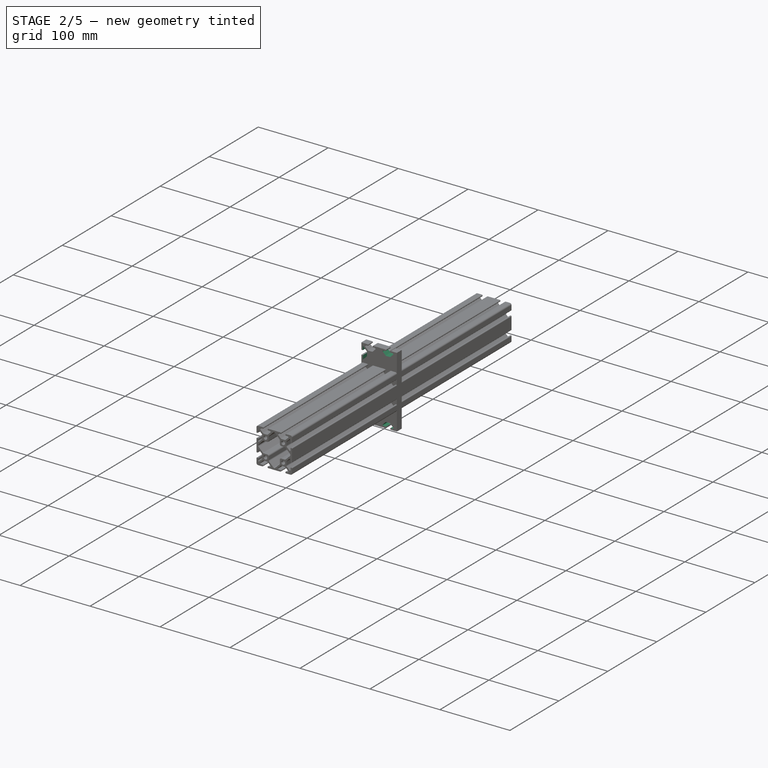
[diagram: stage 2 of 5 — iso view after this stage's code; geometry added in this stage tinted green]
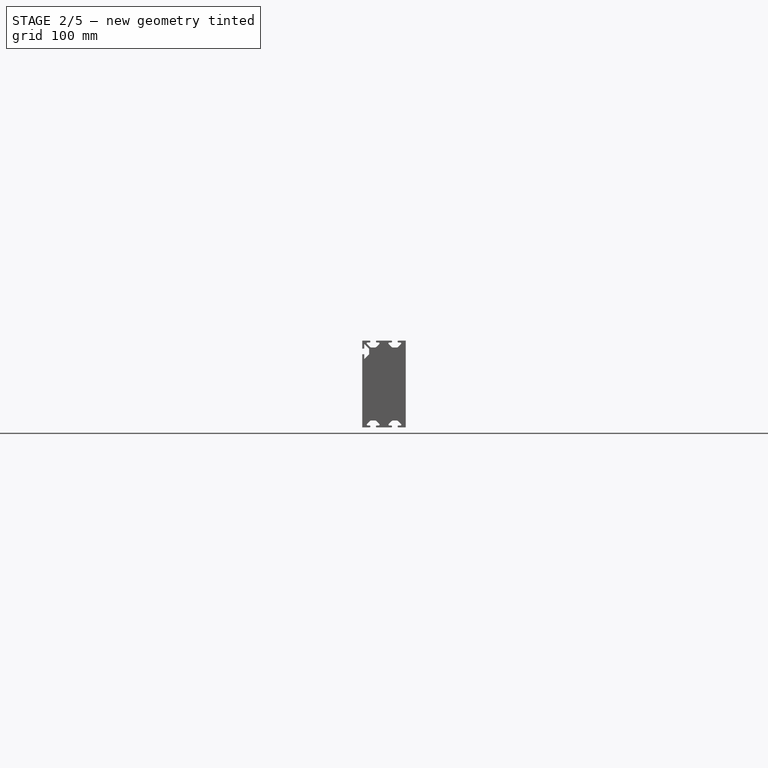
[diagram: stage 2 of 5 — front view after this stage's code; geometry added in this stage tinted green]
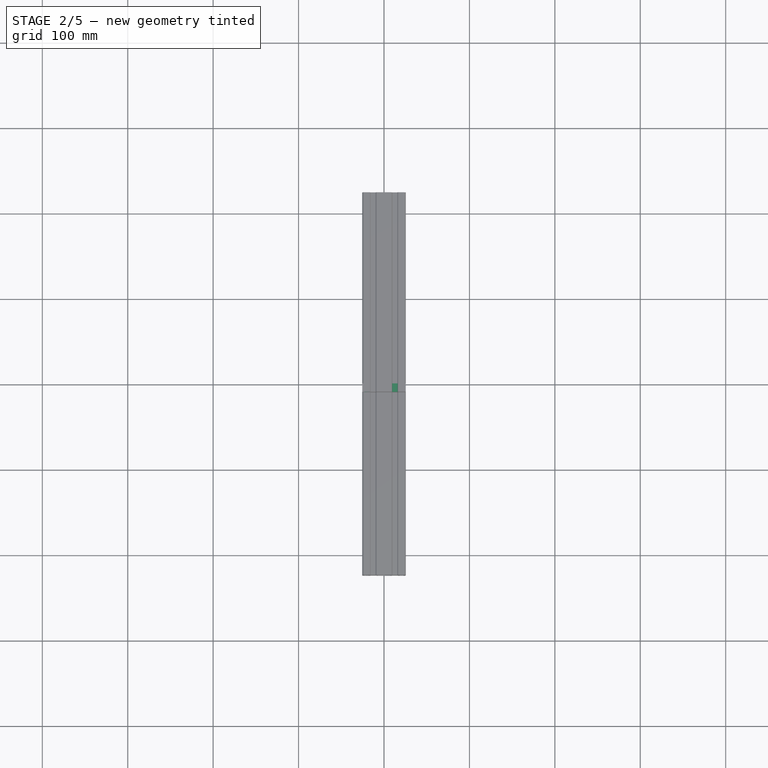
[diagram: stage 2 of 5 — top view after this stage's code; geometry added in this stage tinted green]
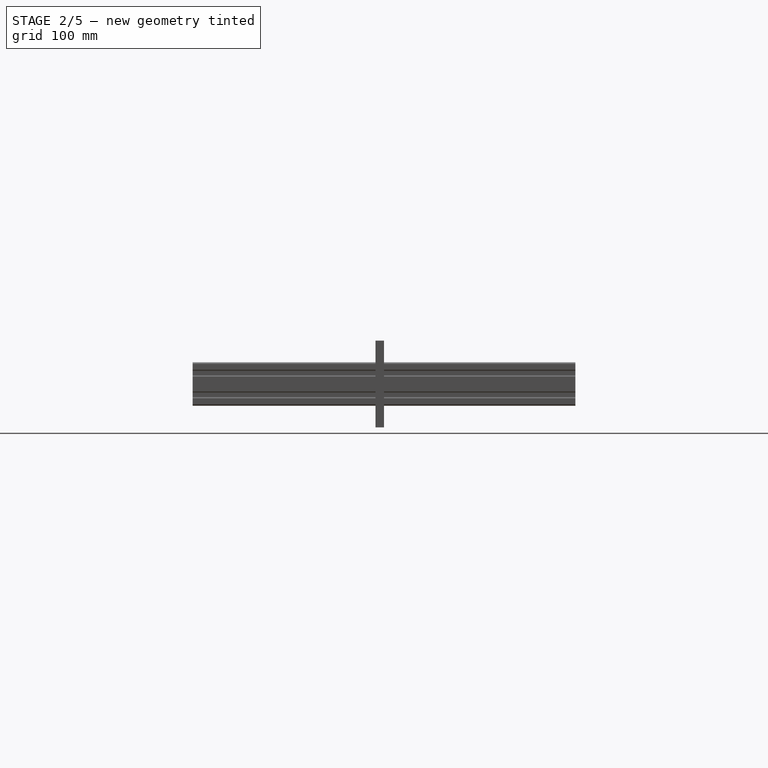
[diagram: stage 2 of 5 — right view after this stage's code; geometry added in this stage tinted green]
FEATURE [PartDesign::Fillet] Fillet001
  Base = -> Pocket [Edge2,Edge16,Edge36,Edge33,Edge32,Edge31]
  BaseFeature = -> Pocket
  NewSolid = false
  Placement = pos=(0,0,0) rot=(1,0,0;1.5708rad)
  Radius = 1
  Refine = true
  SupportTransform = false
  Suppress = false
FEATURE [PartDesign::Fillet] Fillet002
  Base = -> Fillet001 [Edge51,Edge49]
  BaseFeature = -> Fillet001
  NewSolid = false
  Placement = pos=(0,0,0) rot=(1,0,0;1.5708rad)
  Radius = 2
  Refine = true
  SupportTransform = false
  Suppress = false
FEATURE [PartDesign::Mirrored] Mirrored
  CopyShape = false
  MirrorPlane = -> YZ_Plane004
  NewSolid = false
  ParallelTransform = true
  Placement = pos=(0,0,0) rot=(1,0,0;1.5708rad)
  Refine = true
  SubTransform = true
  Suppress = false
  _Version = 1
FEATURE [PartDesign::Mirrored] Mirrored001
  CopyShape = false
  MirrorPlane = -> XY_Plane004
  NewSolid = false
  ParallelTransform = true
  Placement = pos=(0,0,0) rot=(1,0,0;1.5708rad)
  Refine = true
  SubTransform = true
  Suppress = false
  _Version = 1
FEATURE [PartDesign::MultiTransform] MultiTransform
  BaseFeature = -> Fillet002
  CopyShape = false
  NewSolid = false
  OriginalSubs = -> [Pocket,Fillet001,Fillet002]
  Originals = -> [Pocket,Fillet001,Fillet002]
  ParallelTransform = true
  Placement = pos=(0,0,0) rot=(1,0,0;1.5708rad)
  Refine = true
  SubTransform = true
  Suppress = false
  Transformations = -> [Mirrored,Mirrored001]
  _Version = 1
FEATURE [Sketcher::SketchObject] Sketch004
  ExternalGeometry = -> [MultiTransform]
  FullyConstrained = true
  MapMode = 5
  Placement = pos=(0,0,0) rot=(1,0,0;1.5708rad)
  Support = -> [XZ_Plane004]
  sketch-geometry (10):
    g0: LineSegment StartX=-25.4 StartY=41.3512 StartZ=0 EndX=-23.1902 EndY=41.3512 EndZ=0
    g1: LineSegment StartX=-23.1902 StartY=41.3512 StartZ=0 EndX=-23.1902 EndY=47.0276 EndZ=0
    g2: LineSegment StartX=-23.1902 StartY=47.0276 StartZ=0 EndX=-17.3482 EndY=41.1856 EndZ=0
    g3: LineSegment StartX=-17.3482 StartY=41.1856 StartZ=0 EndX=-17.3482 EndY=35.0144 EndZ=0
    g4: LineSegment StartX=-17.3482 StartY=35.0144 StartZ=0 EndX=-23.1902 EndY=29.1724 EndZ=0
    g5: LineSegment StartX=-23.1902 StartY=29.1724 StartZ=0 EndX=-23.1902 EndY=34.8488 EndZ=0
    g6: LineSegment StartX=-23.1902 StartY=34.8488 StartZ=0 EndX=-25.4 EndY=34.8488 EndZ=0
    g7: LineSegment StartX=-25.4 StartY=34.8488 StartZ=0 EndX=-25.4 EndY=41.3512 EndZ=0
    g8: GeomPoint [constr] X=-25.4 Y=38.1 Z=0
    g9: LineSegment [constr] StartX=-19.9205 StartY=46.8831 StartZ=0 EndX=-21.4831 EndY=45.3205 EndZ=0
  constraints (28):
    c: PointOnObject(g0,g-3)
    c: Horizontal(g0)
    c: Coincident(g0,g1)
    c: Vertical(g1)
    c: Coincident(g1,g2)
    c: Coincident(g2,g3)
    c: Vertical(g3)
    c: Coincident(g3,g4)
    c: Coincident(g4,g5)
    c: Vertical(g5)
    c: Coincident(g5,g6)
    c: PointOnObject(g6,g-3)
    c: Horizontal(g6)
    c: Coincident(g6,g7)
    c: Coincident(g7,g0)
    c: Vertical(g5,g0)
    c: DistanceX(g0,g0) = 2.2098
    c: Equal(g2,g4)
    c: Equal(g1,g5)
    c: Symmetric(g0,g6,g8)
    c: DistanceY(g8,g-3) = 12.7
    c: DistanceY(g7,g7) = 6.5024
    c: Parallel(g2,g-4)
    c: Coincident(g9,g-4)
    c: PointOnObject(g9,g2)
    c: Perpendicular(g2,g9)
    c: Distance(g9) = 2.2098
    c: DistanceX(g5,g3) = 5.842
FEATURE [PartDesign::Pocket] Pocket001
  BaseFeature = -> MultiTransform
  ClaimChildren = false
  Fit = 0
  FitJoin = 0
  InnerFit = 0
  InnerFitJoin = 0
  InnerTaperAngle = 0
  InnerTaperAngleRev = 0
  Length = 5
  Length2 = 100
  Linearize = true
  NewSolid = false
  Placement = pos=(0,0,0) rot=(1,0,0;1.5708rad)
  Profile = -> Sketch004
  Refine = true
  Reversed = true
  Suppress = false
  Type = 1
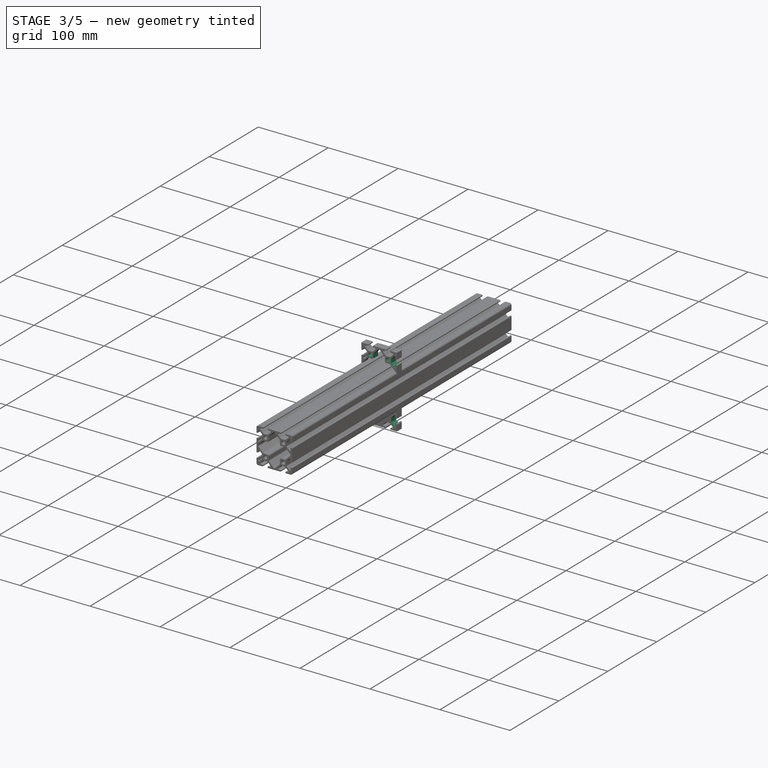
[diagram: stage 3 of 5 — iso view after this stage's code; geometry added in this stage tinted green]
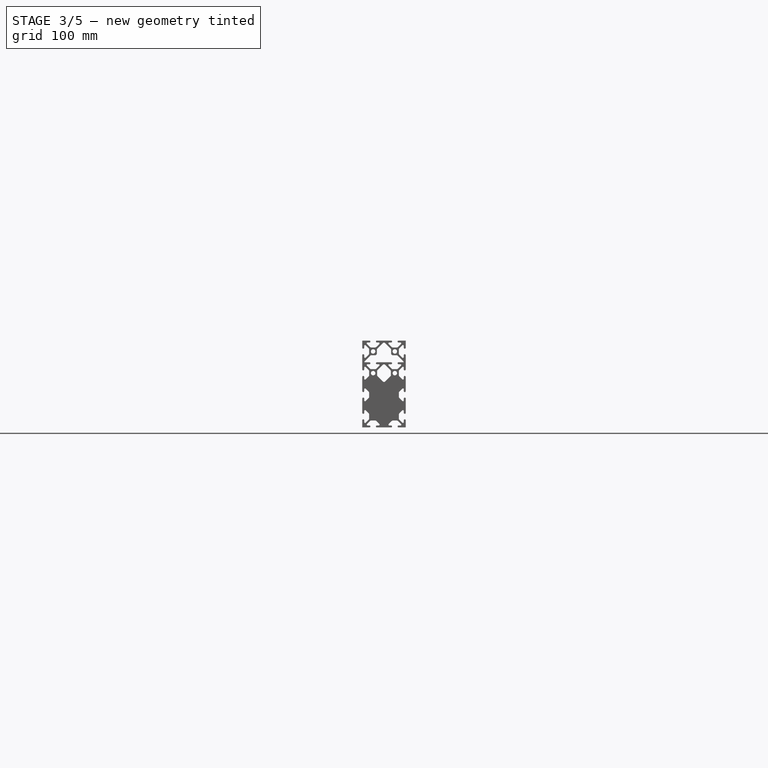
[diagram: stage 3 of 5 — front view after this stage's code; geometry added in this stage tinted green]
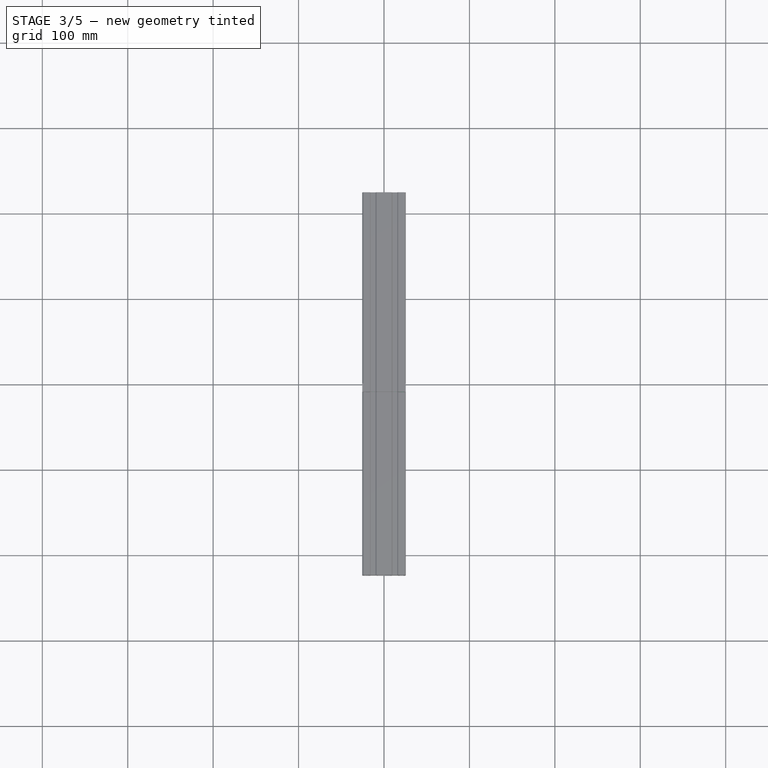
[diagram: stage 3 of 5 — top view after this stage's code; geometry added in this stage tinted green]
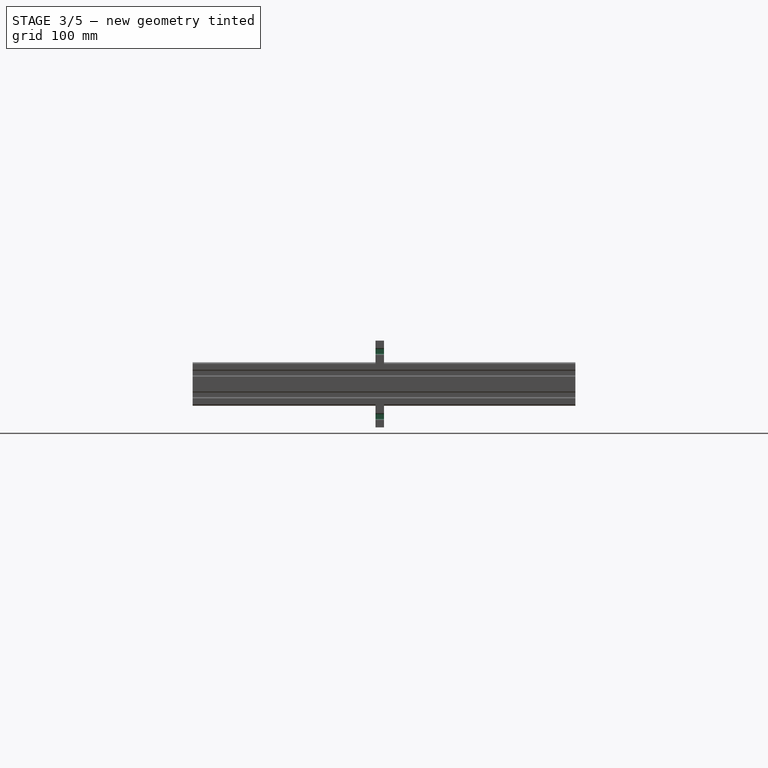
[diagram: stage 3 of 5 — right view after this stage's code; geometry added in this stage tinted green]
FEATURE [PartDesign::Fillet] Fillet003
  Base = -> Pocket001 [Edge173,Edge172,Edge167,Edge166,Edge171,Edge168]
  BaseFeature = -> Pocket001
  NewSolid = false
  Placement = pos=(0,0,0) rot=(1,0,0;1.5708rad)
  Radius = 1
  Refine = true
  SupportTransform = false
  Suppress = false
FEATURE [PartDesign::Fillet] Fillet004
  Base = -> Fillet003 [Edge110,Edge106]
  BaseFeature = -> Fillet003
  NewSolid = false
  Placement = pos=(0,0,0) rot=(1,0,0;1.5708rad)
  Radius = 2
  Refine = true
  SupportTransform = false
  Suppress = false
FEATURE [PartDesign::Mirrored] Mirrored002
  CopyShape = false
  MirrorPlane = -> YZ_Plane004
  NewSolid = false
  ParallelTransform = true
  Placement = pos=(0,0,0) rot=(1,0,0;1.5708rad)
  Refine = true
  SubTransform = true
  Suppress = false
  _Version = 1
FEATURE [PartDesign::LinearPattern] LinearPattern
  CopyShape = false
  Direction = -> Z_Axis004
  Length = 76.2
  NewSolid = false
  Occurrences = 4
  ParallelTransform = true
  Placement = pos=(0,0,0) rot=(1,0,0;1.5708rad)
  Refine = true
  Reversed = true
  SubTransform = true
  Suppress = false
  _Version = 1
FEATURE [PartDesign::MultiTransform] MultiTransform001
  BaseFeature = -> Fillet004
  CopyShape = false
  NewSolid = false
  OriginalSubs = -> [Pocket001,Fillet003,Fillet004]
  Originals = -> [Pocket001,Fillet003,Fillet004]
  ParallelTransform = true
  Placement = pos=(0,0,0) rot=(1,0,0;1.5708rad)
  Refine = true
  SubTransform = true
  Suppress = false
  Transformations = -> [Mirrored002,LinearPattern]
  _Version = 1
FEATURE [Sketcher::SketchObject] Sketch005
  ExternalGeometry = -> [MultiTransform001]
  FullyConstrained = true
  MapMode = 5
  Placement = pos=(0,0,0) rot=(1,0,0;1.5708rad)
  Support = -> [XZ_Plane004]
  sketch-geometry (24):
    g0: Circle CenterX=-12.7 CenterY=38.1 CenterZ=0 NormalX=0 NormalY=0 NormalZ=1 AngleXU=0 Radius=2.6035
    g1: Circle CenterX=12.7 CenterY=38.1 CenterZ=0 NormalX=0 NormalY=0 NormalZ=1 AngleXU=0 Radius=2.6035
    g2: Circle CenterX=12.7 CenterY=12.7 CenterZ=0 NormalX=0 NormalY=0 NormalZ=1 AngleXU=0 Radius=2.6035
    g3: Circle CenterX=-12.7 CenterY=12.7 CenterZ=0 NormalX=0 NormalY=0 NormalZ=1 AngleXU=0 Radius=2.6035
    g4: LineSegment [constr] StartX=-12.7 StartY=38.1 StartZ=0 EndX=12.7 EndY=38.1 EndZ=0
    g5: LineSegment [constr] StartX=12.7 StartY=38.1 StartZ=0 EndX=12.7 EndY=12.7 EndZ=0
    g6: LineSegment StartX=-23.8374 StartY=25.4 StartZ=0 EndX=-15.5316 EndY=33.7058 EndZ=0
    g7: LineSegment StartX=-15.5316 StartY=33.7058 StartZ=0 EndX=-8.3058 EndY=33.7058 EndZ=0
    g8: LineSegment StartX=-8.3058 StartY=33.7058 StartZ=0 EndX=-8.3058 EndY=40.9316 EndZ=0
    g9: LineSegment StartX=-8.3058 StartY=40.9316 StartZ=0 EndX=0 EndY=49.2374 EndZ=0
    g10: LineSegment StartX=0 StartY=49.2374 StartZ=0 EndX=8.3058 EndY=40.9316 EndZ=0
    g11: LineSegment StartX=8.3058 StartY=40.9316 StartZ=0 EndX=8.3058 EndY=33.7058 EndZ=0
    g12: LineSegment StartX=8.3058 StartY=33.7058 StartZ=0 EndX=15.5316 EndY=33.7058 EndZ=0
    g13: LineSegment StartX=15.5316 StartY=33.7058 StartZ=0 EndX=23.8374 EndY=25.4 EndZ=0
    g14: LineSegment StartX=23.8374 StartY=25.4 StartZ=0 EndX=15.5316 EndY=17.0942 EndZ=0
    g15: LineSegment StartX=15.5316 StartY=17.0942 StartZ=0 EndX=8.3058 EndY=17.0942 EndZ=0
    g16: LineSegment StartX=8.3058 StartY=17.0942 StartZ=0 EndX=8.3058 EndY=9.86836 EndZ=0
    g17: LineSegment StartX=8.3058 StartY=9.86836 StartZ=0 EndX=0 EndY=1.56256 EndZ=0
    g18: LineSegment StartX=0 StartY=1.56256 StartZ=0 EndX=-8.3058 EndY=9.86836 EndZ=0
    g19: LineSegment StartX=-8.3058 StartY=9.86836 StartZ=0 EndX=-8.3058 EndY=17.0942 EndZ=0
    g20: LineSegment StartX=-8.3058 StartY=17.0942 StartZ=0 EndX=-15.5316 EndY=17.0942 EndZ=0
    g21: LineSegment StartX=-15.5316 StartY=17.0942 StartZ=0 EndX=-23.8374 EndY=25.4 EndZ=0
    g22: GeomPoint [constr] X=12.7 Y=25.4 Z=0
    g23: LineSegment [constr] StartX=17.934 StartY=34.4286 StartZ=0 EndX=16.3714 EndY=32.866 EndZ=0
  constraints (67):
    c: Horizontal(g3,g2)
    c: Vertical(g3,g0)
    c: Vertical(g1,g2)
    c: Equal(g0,g1)
    c: Equal(g1,g2)
    c: Equal(g2,g3)
    c: Diameter(g0) = 5.207
    c: Symmetric(g0,g1,g-2)
    c: DistanceX(g0,g1) = 25.4
    c: Coincident(g4,g0)
    c: Coincident(g4,g1)
    c: Coincident(g5,g1)
    c: Coincident(g5,g2)
    c: Equal(g5,g4)
    c: DistanceY(g-1,g2) = 12.7
    c: Coincident(g6,g7)
    c: Horizontal(g7)
    c: Coincident(g7,g8)
    c: Vertical(g8)
    c: Coincident(g8,g9)
    c: PointOnObject(g9,g-2)
    c: Coincident(g9,g10)
    c: Coincident(g10,g11)
    c: Vertical(g11)
    c: Coincident(g11,g12)
    c: Horizontal(g12)
    c: Coincident(g12,g13)
    c: Coincident(g13,g14)
    c: Coincident(g14,g15)
    c: Horizontal(g15)
    c: Coincident(g15,g16)
    c: Vertical(g16)
    c: Coincident(g16,g17)
    c: PointOnObject(g17,g-2)
    c: Coincident(g17,g18)
    c: Coincident(g18,g19)
    c: Vertical(g19)
    c: Coincident(g19,g20)
    c: Horizontal(g20)
    c: Coincident(g20,g21)
    c: Coincident(g21,g6)
    c: Equal(g10,g9)
    c: Equal(g9,g6)
    c: Equal(g6,g21)
    c: Equal(g21,g18)
    c: Equal(g18,g17)
    c: Equal(g17,g14)
    c: Equal(g14,g13)
    c: Equal(g8,g11)
    c: Equal(g11,g19)
    c: Equal(g19,g16)
    c: Equal(g16,g7)
    c: Equal(g7,g20)
    c: Equal(g20,g12)
    c: Equal(g12,g15)
    c: Vertical(g7,g19)
    c: Vertical(g11,g15)
    c: DistanceY(g11,g-3) = 9.0424
    c: Parallel(g10,g-4)
    c: Parallel(g13,g-5)
    c: Symmetric(g1,g2,g22)
    c: Horizontal(g22,g13)
    c: Horizontal(g19,g15)
    c: Coincident(g23,g-5)
    c: PointOnObject(g23,g13)
    c: Perpendicular(g13,g23)
    c: Distance(g23) = 2.2098
FEATURE [PartDesign::Pocket] Pocket002
  BaseFeature = -> MultiTransform001
  ClaimChildren = false
  Fit = 0
  FitJoin = 0
  InnerFit = 0
  InnerFitJoin = 0
  InnerTaperAngle = 0
  InnerTaperAngleRev = 0
  Length = 5
  Length2 = 100
  Linearize = true
  NewSolid = false
  Placement = pos=(0,0,0) rot=(1,0,0;1.5708rad)
  Profile = -> Sketch005
  Refine = true
  Reversed = true
  Suppress = false
  Type = 1
FEATURE [PartDesign::Fillet] Fillet005
  Base = -> Pocket002 [Edge646,Edge642,Edge645,Edge643,Edge644,Edge647,Edge640,Edge641,Edge636,Edge635,Edge634,Edge632,Edge633,Edge638,Edge637,Edge639]
  BaseFeature = -> Pocket002
  NewSolid = false
  Placement = pos=(0,0,0) rot=(1,0,0;1.5708rad)
  Radius = 2
  Refine = true
  SupportTransform = false
  Suppress = false
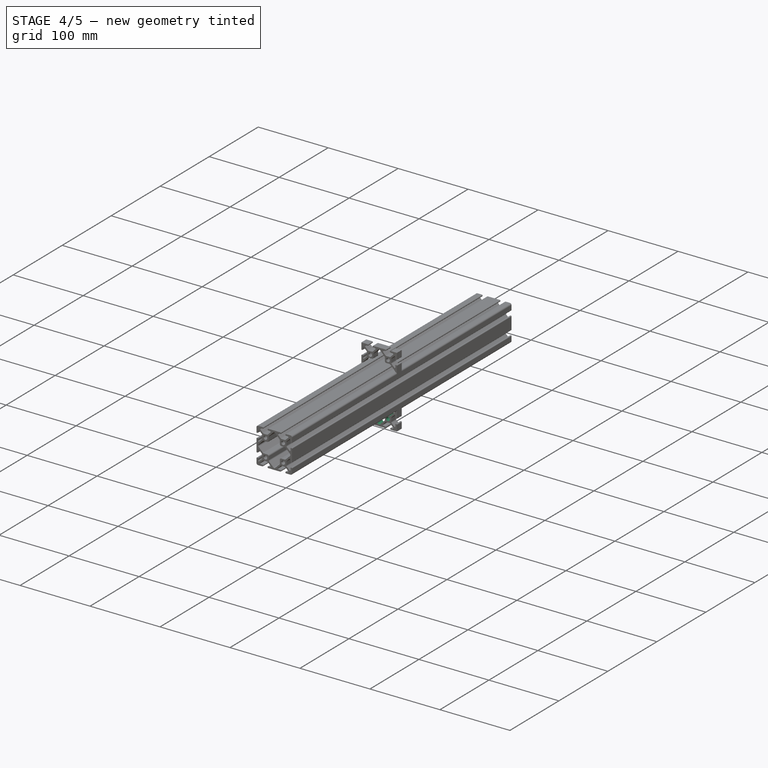
[diagram: stage 4 of 5 — iso view after this stage's code; geometry added in this stage tinted green]
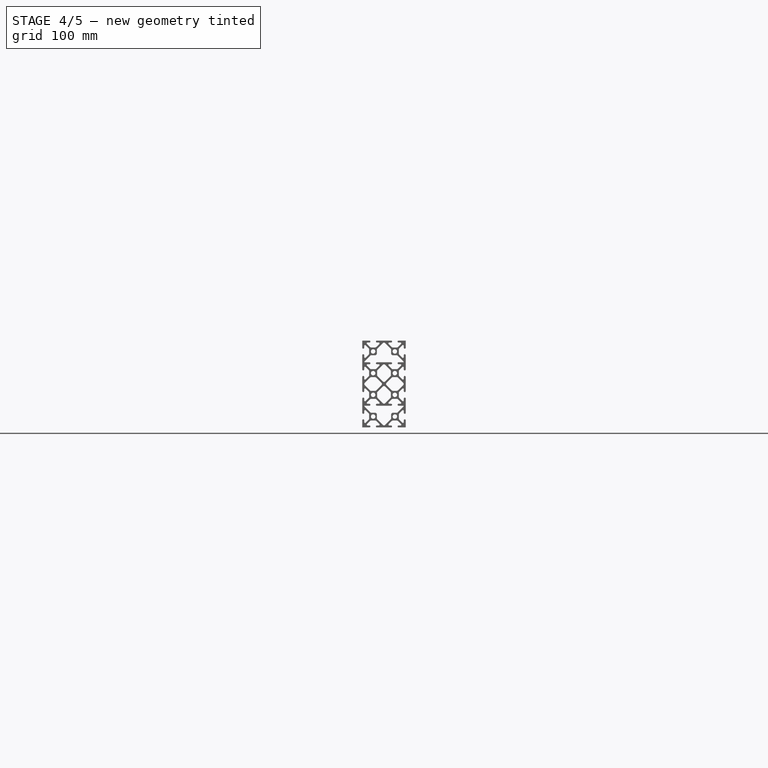
[diagram: stage 4 of 5 — front view after this stage's code; geometry added in this stage tinted green]
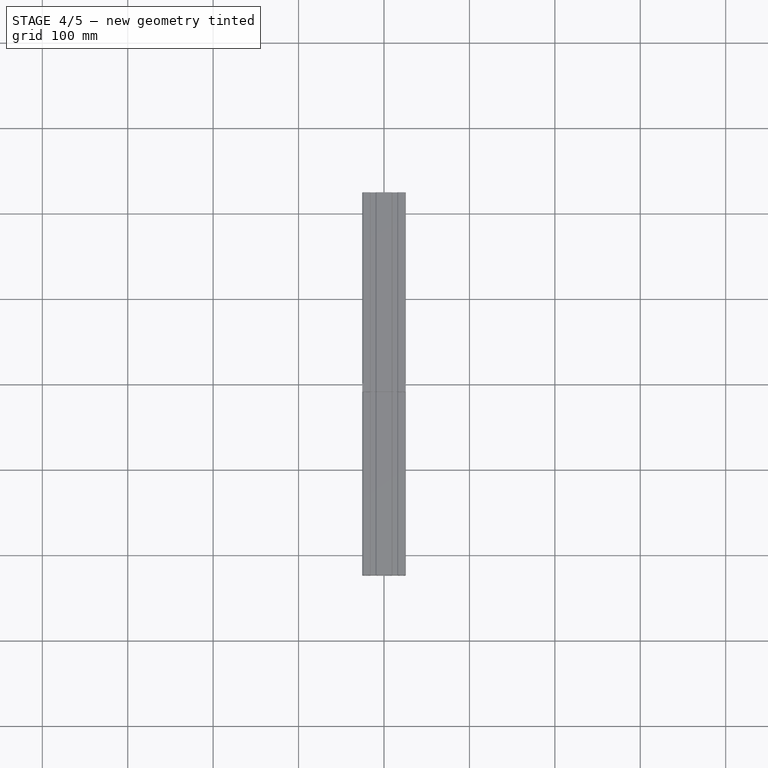
[diagram: stage 4 of 5 — top view after this stage's code; geometry added in this stage tinted green]
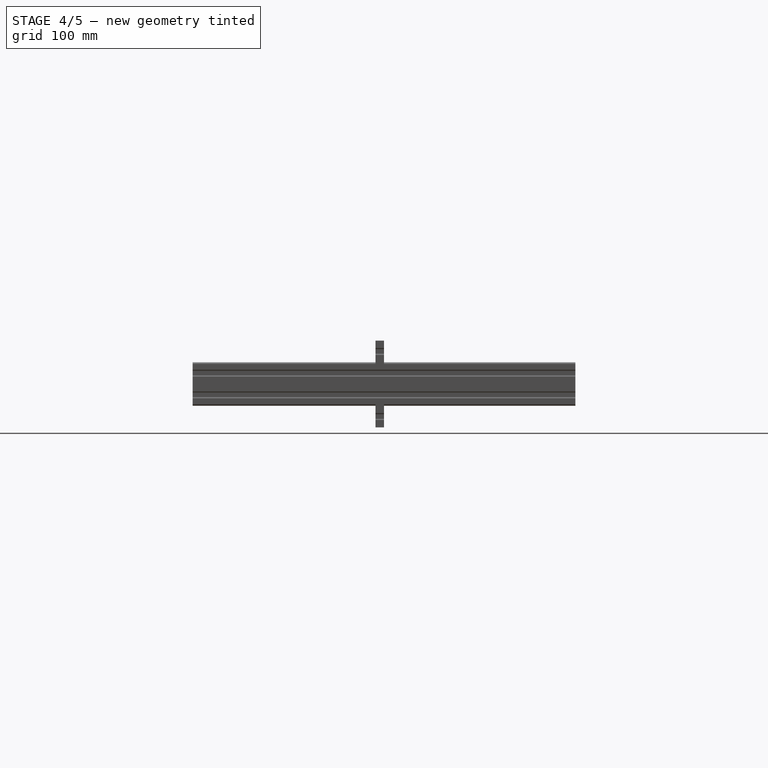
[diagram: stage 4 of 5 — right view after this stage's code; geometry added in this stage tinted green]
FEATURE [PartDesign::Mirrored] Mirrored003
  BaseFeature = -> Fillet005
  CopyShape = false
  MirrorPlane = -> XY_Plane004
  NewSolid = false
  OriginalSubs = -> [Pocket002,Fillet005]
  Originals = -> [Pocket002,Fillet005]
  ParallelTransform = true
  Placement = pos=(0,0,0) rot=(1,0,0;1.5708rad)
  Refine = true
  SubTransform = true
  Suppress = false
  _Version = 1
FEATURE [Sketcher::SketchObject] Sketch006
  ExternalGeometry = -> [Mirrored003]
  FullyConstrained = true
  MapMode = 5
  Placement = pos=(0,0,0) rot=(1,0,0;1.5708rad)
  Support = -> [XZ_Plane004]
  sketch-geometry (8):
    g0: LineSegment StartX=-23.8374 StartY=0 StartZ=0 EndX=-15.7856 EndY=8.0518 EndZ=0
    g1: LineSegment StartX=-15.7856 StartY=8.0518 StartZ=0 EndX=-9.61436 EndY=8.0518 EndZ=0
    g2: LineSegment StartX=-9.61436 StartY=8.0518 StartZ=0 EndX=-1.56256 EndY=0 EndZ=0
    g3: LineSegment StartX=-1.56256 StartY=0 StartZ=0 EndX=-9.61436 EndY=-8.0518 EndZ=0
    g4: LineSegment StartX=-9.61436 StartY=-8.0518 StartZ=0 EndX=-15.7856 EndY=-8.0518 EndZ=0
    g5: LineSegment StartX=-15.7856 StartY=-8.0518 StartZ=0 EndX=-23.8374 EndY=0 EndZ=0
    g6: LineSegment [constr] StartX=-21.4831 StartY=5.47947 StartZ=0 EndX=-19.9205 EndY=3.91691 EndZ=0
    g7: LineSegment [constr] StartX=-1.41421 StartY=2.97678 StartZ=0 EndX=-2.97678 EndY=1.41421 EndZ=0
  constraints (24):
    c: PointOnObject(g0,g-1)
    c: Coincident(g0,g1)
    c: Horizontal(g1)
    c: Coincident(g1,g2)
    c: Coincident(g2,g3)
    c: Coincident(g3,g4)
    c: Horizontal(g4)
    c: Coincident(g4,g5)
    c: Coincident(g5,g0)
    c: Equal(g4,g1)
    c: Equal(g2,g3)
    c: PointOnObject(g2,g-1)
    c: Equal(g0,g5)
    c: Equal(g0,g2)
    c: Parallel(g-3,g0)
    c: Coincident(g6,g-3)
    c: PointOnObject(g6,g0)
    c: Perpendicular(g0,g6)
    c: Distance(g6) = 2.2098
    c: Coincident(g7,g-4)
    c: PointOnObject(g7,g2)
    c: Perpendicular(g7,g2)
    c: Equal(g7,g6)
    c: DistanceY(g1,g-5) = 9.0424
FEATURE [PartDesign::Pocket] Pocket003
  BaseFeature = -> Mirrored003
  ClaimChildren = false
  Fit = 0
  FitJoin = 0
  InnerFit = 0
  InnerFitJoin = 0
  InnerTaperAngle = 0
  InnerTaperAngleRev = 0
  Length = 5
  Length2 = 100
  Linearize = true
  NewSolid = false
  Placement = pos=(0,0,0) rot=(1,0,0;1.5708rad)
  Profile = -> Sketch006
  Refine = true
  Reversed = true
  Suppress = false
  Type = 1
FEATURE [PartDesign::Fillet] Fillet006
  Base = -> Pocket003 [Edge820,Edge819,Edge815,Edge817,Edge816,Edge818]
  BaseFeature = -> Pocket003
  NewSolid = false
  Placement = pos=(0,0,0) rot=(1,0,0;1.5708rad)
  Radius = 2
  Refine = true
  SupportTransform = false
  Suppress = false
FEATURE [PartDesign::Mirrored] Mirrored004
  BaseFeature = -> Fillet006
  CopyShape = false
  MirrorPlane = -> YZ_Plane004
  NewSolid = false
  OriginalSubs = -> [Pocket003,Fillet006]
  Originals = -> [Pocket003,Fillet006]
  ParallelTransform = true
  Placement = pos=(0,0,0) rot=(1,0,0;1.5708rad)
  Refine = true
  SubTransform = true
  Suppress = false
  _Version = 1
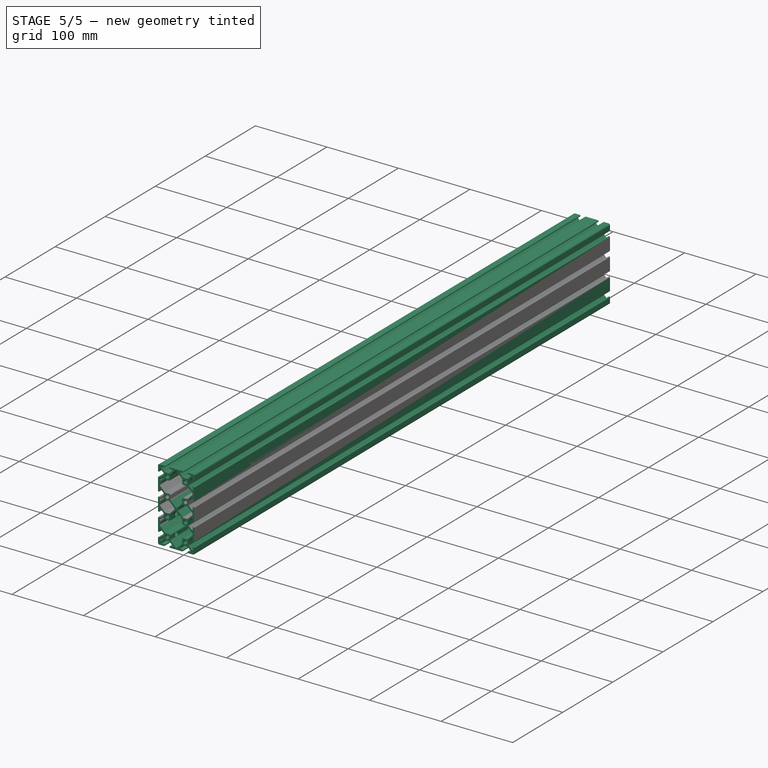
[diagram: stage 5 of 5 — iso view after this stage's code; geometry added in this stage tinted green]
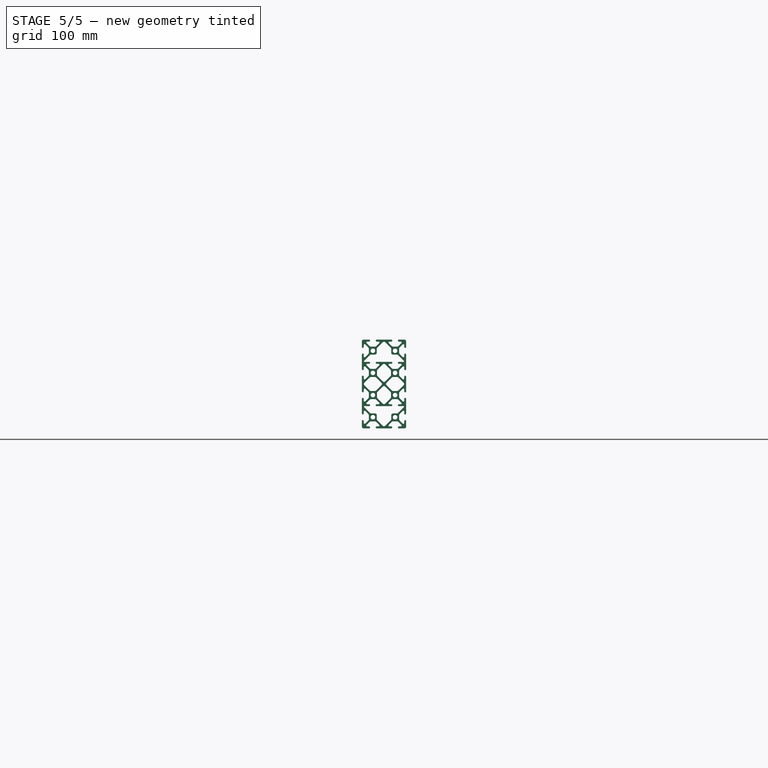
[diagram: stage 5 of 5 — front view after this stage's code; geometry added in this stage tinted green]
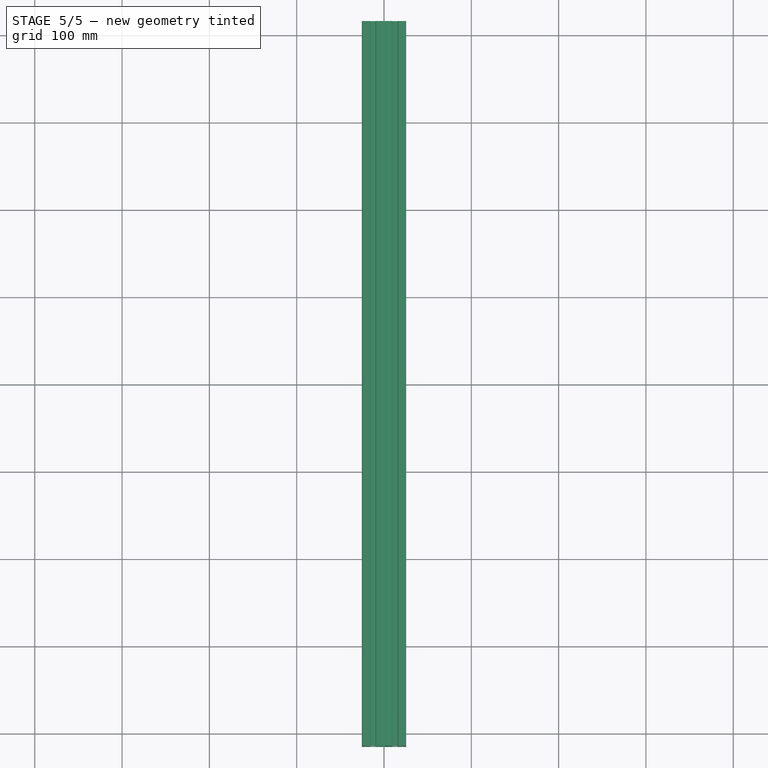
[diagram: stage 5 of 5 — top view after this stage's code; geometry added in this stage tinted green]
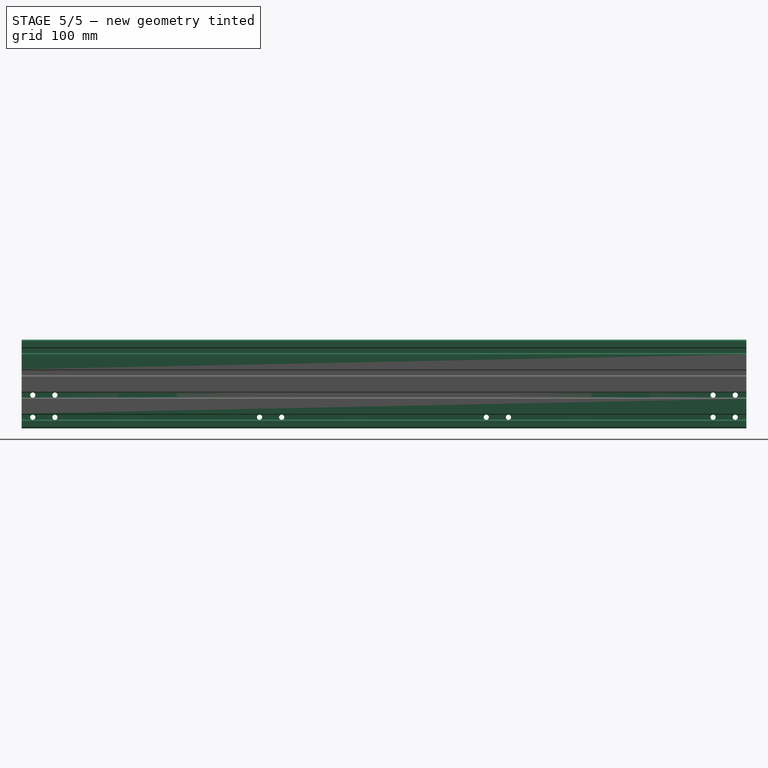
[diagram: stage 5 of 5 — right view after this stage's code; geometry added in this stage tinted green]
FEATURE [PartDesign::Body] Body  label="2x2 profile"
  AutoGroupSolids = false
  ExportMode = 0
  Group = -> [Sketch,Pad,Fillet]
  Origin = -> Origin
  Tip = -> Fillet
  _ExportChildren = -> [Pad,Fillet]
  _GroupVersion = 1
FEATURE [PartDesign::ShapeBinder] ShapeBinder
  Support = -> [Fillet]
  TraceSupport = false
FEATURE [PartDesign::Pad] Pad001
  ClaimChildren = false
  Direction = (1,1,1)
  Fit = 0
  FitJoin = 0
  InnerFit = 0
  InnerFitJoin = 0
  InnerTaperAngle = 0
  InnerTaperAngleRev = 0
  Length = 609.6
  Length2 = 100
  Linearize = true
  Midplane = true
  NewSolid = false
  Profile = -> ShapeBinder
  Refine = true
  Suppress = false
  Type = 0
FEATURE [Sketcher::SketchObject] Sketch007
  AttachmentOffset = pos=(0,0,-2.21) rot=(0,0,1;0rad)
  ExternalGeometry = -> [Pad001]
  FullyConstrained = true
  MapMode = 5
  Placement = pos=(23.19,0,0) rot=(0.57735,0.57735,0.57735;2.0944rad)
  Support = -> [Pad001]
  sketch-geometry (15):
    g0: Circle CenterX=234.8 CenterY=-12.7 CenterZ=0 NormalX=0 NormalY=0 NormalZ=1 AngleXU=0 Radius=2.75
    g1: Circle CenterX=-234.8 CenterY=-12.7 CenterZ=0 NormalX=0 NormalY=0 NormalZ=1 AngleXU=0 Radius=2.75
    g2: Circle CenterX=78.2667 CenterY=-12.7 CenterZ=0 NormalX=0 NormalY=0 NormalZ=1 AngleXU=0 Radius=2.75
    g3: Circle CenterX=-78.2667 CenterY=-12.7 CenterZ=0 NormalX=0 NormalY=0 NormalZ=1 AngleXU=0 Radius=2.75
    g4: Circle CenterX=-234.8 CenterY=-12.7 CenterZ=0 NormalX=0 NormalY=0 NormalZ=1 AngleXU=0 Radius=2.75
    g5: Circle CenterX=-78.2667 CenterY=-12.7 CenterZ=0 NormalX=0 NormalY=0 NormalZ=1 AngleXU=0 Radius=2.75
    g6: GeomPoint [constr] X=234.8 Y=-8.4488 Z=0
    g7: GeomPoint [constr] X=234.8 Y=-16.9512 Z=0
    g8: LineSegment [constr] StartX=234.8 StartY=-12.7 StartZ=0 EndX=78.2667 EndY=-12.7 EndZ=0
    g9: LineSegment [constr] StartX=78.2667 StartY=-12.7 StartZ=0 EndX=-78.2667 EndY=-12.7 EndZ=0
    g10: LineSegment [constr] StartX=-78.2667 StartY=-12.7 StartZ=0 EndX=-234.8 EndY=-12.7 EndZ=0
    g11: LineSegment [constr] StartX=-78.2667 StartY=-12.7 StartZ=0 EndX=-234.8 EndY=-12.7 EndZ=0
    g12: LineSegment [constr] StartX=-234.8 StartY=-12.7 StartZ=0 EndX=-304.8 EndY=-12.7 EndZ=0
    g13: LineSegment [constr] StartX=-234.8 StartY=-12.7 StartZ=0 EndX=-78.2667 EndY=-12.7 EndZ=0
    g14: LineSegment [constr] StartX=234.8 StartY=-12.7 StartZ=0 EndX=304.8 EndY=-12.7 EndZ=0
  constraints (34):
    c: PointOnObject(g6,g-3)
    c: PointOnObject(g7,g-4)
    c: Symmetric(g7,g6,g0)
    c: Vertical(g6,g0)
    c: Horizontal(g0,g2)
    c: Horizontal(g2,g3)
    c: Horizontal(g3,g4)
    c: Horizontal(g4,g5)
    c: Horizontal(g5,g1)
    c: Coincident(g8,g0)
    c: Coincident(g8,g2)
    c: Coincident(g9,g2)
    c: Coincident(g9,g3)
    c: Coincident(g10,g3)
    c: Coincident(g10,g4)
    c: Coincident(g11,g5)
    c: Coincident(g11,g4)
    c: Coincident(g12,g1)
    c: Horizontal(g12)
    c: Coincident(g13,g1)
    c: Coincident(g13,g5)
    c: Vertical(g12,g-3)
    c: Equal(g13,g11)
    c: Equal(g11,g10)
    c: Equal(g10,g9)
    c: Equal(g9,g8)
    c: Diameter(g0) = 5.5
    c: Equal(g0, g2-g5) x4
    c: Equal(g0,g1)
    c: Coincident(g14,g0)
    c: Horizontal(g14)
    c: Vertical(g14,g-3)
    c: DistanceX(g14,g14) = 70
    c: Equal(g14,g12)
FEATURE [PartDesign::Pocket] Pocket004
  BaseFeature = -> Pad001
  ClaimChildren = false
  Fit = 0
  FitJoin = 0
  InnerFit = 0
  InnerFitJoin = 0
  InnerTaperAngle = 0
  InnerTaperAngleRev = 0
  Length = 5
  Length2 = 100
  Linearize = true
  Midplane = true
  NewSolid = false
  Profile = -> Sketch007
  Refine = true
  Suppress = false
  Type = 1
FEATURE [PartDesign::Body] Body001  label="X-beam 2x2"
  AutoGroupSolids = false
  ExportMode = 0
  Group = -> [ShapeBinder,Pad001,Sketch001,Sketch007,Pocket004]
  Origin = -> Origin001
  Placement = pos=(-85,0,0) rot=(0,0,1;0rad)
  Tip = -> Pocket004
  _ExportChildren = -> [Pad001,Sketch001,Pocket004]
  _GroupVersion = 1
FEATURE [PartDesign::Fillet] Fillet007
  Base = -> Mirrored004 [Edge246,Edge48,Edge538,Edge340]
  BaseFeature = -> Mirrored004
  NewSolid = false
  Placement = pos=(0,0,0) rot=(1,0,0;1.5708rad)
  Radius = 2
  Refine = true
  SupportTransform = false
  Suppress = false
FEATURE [PartDesign::Body] Body004  label="2x4 profile"
  AutoGroupSolids = false
  ExportMode = 0
  Group = -> [Sketch002,Pad004,Sketch003,Pocket,Fillet001,Fillet002,MultiTransform,Mirrored,Mirrored001,Sketch004,Pocket001,Fillet003,Fillet004,MultiTransform001,Mirrored002,LinearPattern,Sketch005,Pocket002,Fillet005,Mirrored003,Sketch006,Pocket003,Fillet006,Mirrored004,Fillet007]
  Origin = -> Origin004
  Tip = -> Fillet007
  _ExportChildren = -> [Pad004,Pocket,Fillet001,Fillet002,MultiTransform,Pocket001,Fillet003,Fillet004,MultiTransform001,Pocket002,Fillet005,Mirrored003,Pocket003,Fillet006,Mirrored004,Fillet007]
  _GroupVersion = 1
FEATURE [App::DocumentObjectGroup] Group  label="Profiles"
  ExportMode = 1
  Group = -> [Body004,Body]
  _GroupVersion = 1
FEATURE [PartDesign::ShapeBinder] ShapeBinder003
  Placement = pos=(0,0,0) rot=(1,0,0;1.5708rad)
  Support = -> [Fillet007]
  TraceSupport = false
FEATURE [PartDesign::Pad] Pad005
  ClaimChildren = false
  Direction = (1,1,1)
  Fit = 0
  FitJoin = 0
  InnerFit = 0
  InnerFitJoin = 0
  InnerTaperAngle = 0
  InnerTaperAngleRev = 0
  Length = 830
  Length2 = 100
  Linearize = true
  Midplane = true
  NewSolid = false
  Placement = pos=(0,0,0) rot=(1,0,0;1.5708rad)
  Profile = -> ShapeBinder003
  Refine = true
  Suppress = false
  Type = 0
FEATURE [Sketcher::SketchObject] Sketch008  label="rail ref"
  ExternalGeometry = -> [Pad005]
  FullyConstrained = true
  MapMode = 5
  Placement = pos=(-25.4,3.3e-15,0) rot=(0.707107,0,-0.707107;3.14159rad)
  Support = -> [Pad005]
  sketch-geometry (3):
    g0: Circle CenterX=-38.1 CenterY=0 CenterZ=0 NormalX=0 NormalY=0 NormalZ=1 AngleXU=0 Radius=2.75
    g1: GeomPoint [constr] X=-42.3512 Y=0 Z=0
    g2: GeomPoint [constr] X=-33.8488 Y=0 Z=0
  constraints (6):
    c: PointOnObject(g0,g-1)
    c: PointOnObject(g1,g-3)
    c: PointOnObject(g2,g-4)
    c: PointOnObject(g1,g-1)
    c: Symmetric(g2,g1,g0)
    c: Diameter(g0) = 5.5
FEATURE [Sketcher::SketchObject] Sketch009
  AttachmentOffset = pos=(0,0,-2.21) rot=(0,0,1;0rad)
  ExternalGeometry = -> [Pad005]
  FullyConstrained = true
  MapMode = 5
  Placement = pos=(23.19,-3e-15,-5e-16) rot=(0.707107,0,0.707107;3.14159rad)
  Support = -> [Pad005]
  sketch-geometry (27):
    g0: Circle CenterX=-12.7 CenterY=-402.3 CenterZ=0 NormalX=0 NormalY=0 NormalZ=1 AngleXU=0 Radius=3
    g1: Circle CenterX=-12.7 CenterY=-376.9 CenterZ=0 NormalX=0 NormalY=0 NormalZ=1 AngleXU=0 Radius=3
    g2: Circle CenterX=-38.1 CenterY=-402.3 CenterZ=0 NormalX=0 NormalY=0 NormalZ=1 AngleXU=0 Radius=3
    g3: Circle CenterX=-38.1 CenterY=-376.9 CenterZ=0 NormalX=0 NormalY=0 NormalZ=1 AngleXU=0 Radius=3
    g4: Circle CenterX=-12.7 CenterY=-142.567 CenterZ=0 NormalX=0 NormalY=0 NormalZ=1 AngleXU=0 Radius=3
    g5: Circle CenterX=-12.7 CenterY=-117.167 CenterZ=0 NormalX=0 NormalY=0 NormalZ=1 AngleXU=0 Radius=3
    g6: Circle CenterX=-38.1 CenterY=-142.567 CenterZ=0 NormalX=0 NormalY=0 NormalZ=1 AngleXU=0 Radius=3
    g7: Circle CenterX=-38.1 CenterY=-117.167 CenterZ=0 NormalX=0 NormalY=0 NormalZ=1 AngleXU=0 Radius=3
    g8: Circle CenterX=-38.1 CenterY=117.167 CenterZ=0 NormalX=0 NormalY=0 NormalZ=1 AngleXU=0 Radius=3
    g9: Circle CenterX=-12.7 CenterY=117.167 CenterZ=0 NormalX=0 NormalY=0 NormalZ=1 AngleXU=0 Radius=3
    g10: Circle CenterX=-38.1 CenterY=142.567 CenterZ=0 NormalX=0 NormalY=0 NormalZ=1 AngleXU=0 Radius=3
    g11: Circle CenterX=-12.7 CenterY=142.567 CenterZ=0 NormalX=0 NormalY=0 NormalZ=1 AngleXU=0 Radius=3
    g12: Circle CenterX=-12.7 CenterY=402.3 CenterZ=0 NormalX=0 NormalY=0 NormalZ=1 AngleXU=0 Radius=3
    g13: Circle CenterX=-38.1 CenterY=402.3 CenterZ=0 NormalX=0 NormalY=0 NormalZ=1 AngleXU=0 Radius=3
    g14: Circle CenterX=-12.7 CenterY=376.9 CenterZ=0 NormalX=0 NormalY=0 NormalZ=1 AngleXU=0 Radius=3
    g15: Circle CenterX=-38.1 CenterY=376.9 CenterZ=0 NormalX=0 NormalY=0 NormalZ=1 AngleXU=0 Radius=3
    g16: GeomPoint [constr] X=-42.3512 Y=-402.3 Z=0
    g17: LineSegment [constr] StartX=-12.7 StartY=-402.3 StartZ=0 EndX=-38.1 EndY=-402.3 EndZ=0
    g18: LineSegment [constr] StartX=-12.7 StartY=-402.3 StartZ=0 EndX=-12.7 EndY=-376.9 EndZ=0
    g19: LineSegment [constr] StartX=-12.7 StartY=-376.9 StartZ=0 EndX=-12.7 EndY=-142.567 EndZ=0
    g20: LineSegment [constr] StartX=-12.7 StartY=-142.567 StartZ=0 EndX=-12.7 EndY=-117.167 EndZ=0
    g21: LineSegment [constr] StartX=-12.7 StartY=-117.167 StartZ=0 EndX=-12.7 EndY=117.167 EndZ=0
    g22: LineSegment [constr] StartX=-12.7 StartY=117.167 StartZ=0 EndX=-12.7 EndY=142.567 EndZ=0
    g23: LineSegment [constr] StartX=-12.7 StartY=142.567 StartZ=0 EndX=-12.7 EndY=376.9 EndZ=0
    g24: LineSegment [constr] StartX=-12.7 StartY=-402.3 StartZ=0 EndX=-12.7 EndY=-415 EndZ=0
    g25: GeomPoint [constr] X=-33.8488 Y=-402.3 Z=0
    g26: LineSegment [constr] StartX=-12.7 StartY=402.3 StartZ=0 EndX=-12.7 EndY=376.9 EndZ=0
  constraints (70):
    c: PointOnObject(g16,g-3)
    c: Horizontal(g16,g0)
    c: Horizontal(g3,g1)
    c: Horizontal(g6,g4)
    c: Horizontal(g7,g5)
    c: Horizontal(g8,g9)
    c: Horizontal(g10,g11)
    c: Horizontal(g15,g14)
    c: Horizontal(g13,g12)
    c: Coincident(g17,g0)
    c: Coincident(g17,g2)
    c: Coincident(g18,g0)
    c: Coincident(g18,g1)
    c: Vertical(g18)
    c: Coincident(g19,g1)
    c: Coincident(g19,g4)
    c: Vertical(g19)
    c: Coincident(g20,g4)
    c: Coincident(g20,g5)
    c: Vertical(g20)
    c: Coincident(g21,g5)
    c: Coincident(g21,g9)
    c: Vertical(g21)
    c: Coincident(g22,g9)
    c: Coincident(g22,g11)
    c: Vertical(g22)
    c: Coincident(g23,g11)
    c: Coincident(g23,g14)
    c: Vertical(g23)
    c: Equal(g22,g20)
    c: Equal(g20,g18)
    c: Equal(g18,g17)
    c: DistanceX(g17,g17) = 25.4
    c: Coincident(g24,g0)
    c: Vertical(g24)
    c: Equal(g19,g21)
    c: Equal(g21,g23)
    c: DistanceY(g24,g24) = 12.7
    c: Diameter(g13) = 6
    c: Equal(g13,g15)
    c: Equal(g13,g14)
    c: Equal(g13,g12)
    c: Equal(g13,g10)
    c: Equal(g13,g8)
    c: Equal(g13,g9)
    c: Equal(g13,g11)
    c: Equal(g13,g7)
    c: Equal(g13,g6)
    c: Equal(g13,g4)
    c: Equal(g13,g5)
    c: Equal(g13,g2)
    c: Equal(g13,g3)
    c: Equal(g13,g1)
    c: Equal(g13,g0)
    c: Vertical(g3,g2)
    c: Vertical(g2,g6)
    c: Vertical(g6,g7)
    c: Vertical(g7,g8)
    c: Vertical(g8,g10)
    c: Vertical(g10,g13)
    c: Vertical(g13,g15)
    c: Horizontal(g17)
    c: PointOnObject(g25,g-4)
    c: Horizontal(g-4,g24)
    c: Symmetric(g16,g25,g2)
    c: DistanceY(g13,g-3) = 12.7
    c: Vertical(g12,g14)
    c: Coincident(g26,g12)
    c: Coincident(g26,g14)
    c: Equal(g26,g22)
FEATURE [PartDesign::Pocket] Pocket005
  BaseFeature = -> Pad005
  ClaimChildren = false
  Fit = 0
  FitJoin = 0
  InnerFit = 0
  InnerFitJoin = 0
  InnerTaperAngle = 0
  InnerTaperAngleRev = 0
  Length = 5
  Length2 = 100
  Linearize = true
  Midplane = true
  NewSolid = false
  Placement = pos=(0,0,0) rot=(1,0,0;1.5708rad)
  Profile = -> Sketch009
  Refine = true
  Suppress = false
  Type = 1
FEATURE [Sketcher::SketchObject] Sketch010  label="bf12 ref"
  ExternalGeometry = -> [Pocket005]
  FullyConstrained = true
  MapMode = 5
  Placement = pos=(-25.4,3.3e-15,0) rot=(0.707107,0,-0.707107;3.14159rad)
  Support = -> [Pocket005]
  sketch-geometry (2):
    g0: Circle CenterX=38.1 CenterY=-405 CenterZ=0 NormalX=0 NormalY=0 NormalZ=1 AngleXU=0 Radius=2.5
    g1: Circle CenterX=38.1 CenterY=405 CenterZ=0 NormalX=0 NormalY=0 NormalZ=1 AngleXU=0 Radius=2.5
  constraints (5):
    c: Diameter(g0) = 5
    c: DistanceX(g-1,g0) = 38.1
    c: Equal(g0,g1)
    c: Symmetric(g0,g1,g-1)
    c: DistanceY(g-3,g0) = 10
FEATURE [PartDesign::Body] Body005  label="Y-beam 2x4"
  AutoGroupSolids = false
  ExportMode = 0
  Group = -> [ShapeBinder003,Pad005,Sketch008,Sketch009,Pocket005,Sketch010]
  Origin = -> Origin005
  Tip = -> Pocket005
  _ExportChildren = -> [Pad005,Sketch008,Pocket005,Sketch010]
  _GroupVersion = 1
FEATURE [Sketcher::SketchObject] Sketch011
  ExternalGeometry = -> [Pad003]
  FullyConstrained = true
  MapMode = 5
  Placement = pos=(0,5.6e-15,25.4) rot=(0,0,1;0rad)
  Support = -> [Pad003]
  sketch-geometry (3):
    g0: Circle CenterX=-12.7 CenterY=-187.5 CenterZ=0 NormalX=0 NormalY=0 NormalZ=1 AngleXU=0 Radius=2.5
    g1: LineSegment [constr] StartX=-12.7 StartY=-187.5 StartZ=0 EndX=-14.9572 EndY=-224 EndZ=0
    g2: LineSegment [constr] StartX=-12.7 StartY=-187.5 StartZ=0 EndX=-10.4428 EndY=-224 EndZ=0
  constraints (7):
    c: Diameter(g0) = 5
    c: Coincident(g1,g0)
    c: Coincident(g1,g-3)
    c: Coincident(g2,g0)
    c: Coincident(g2,g-3)
    c: Equal(g2,g1)
    c: DistanceY(g-3,g0) = 36.5
FEATURE [PartDesign::Body] Body003  label="Cross member 2x2"
  AutoGroupSolids = false
  ExportMode = 0
  Group = -> [ShapeBinder002,Pad003,Sketch011]
  Origin = -> Origin003
  Placement = pos=(-173,0,0) rot=(0,0,1;0rad)
  Tip = -> Pad003
  _ExportChildren = -> [Pad003,Sketch011]
  _GroupVersion = 1
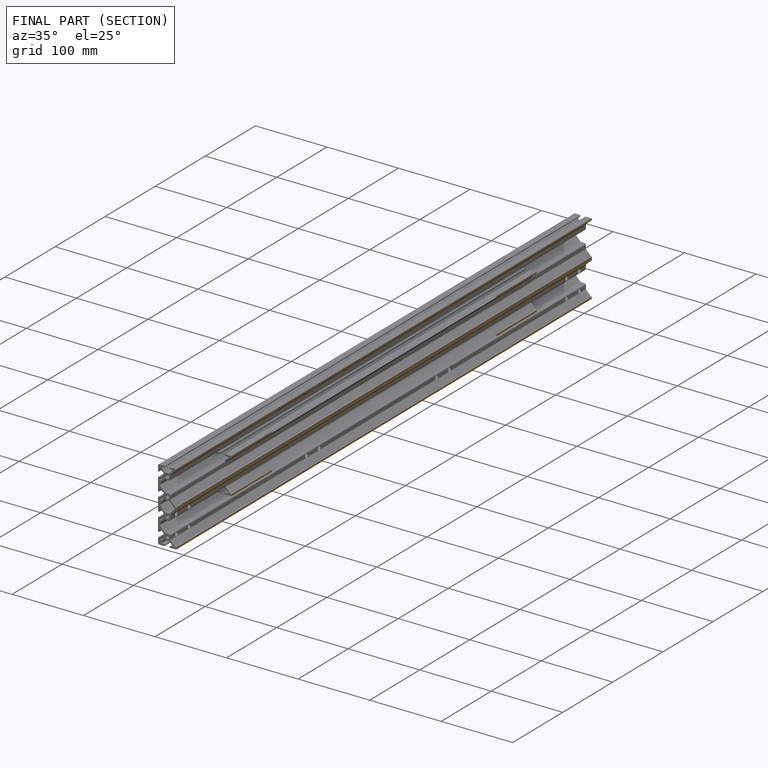
[diagram: finished part — half-section view (interior)]
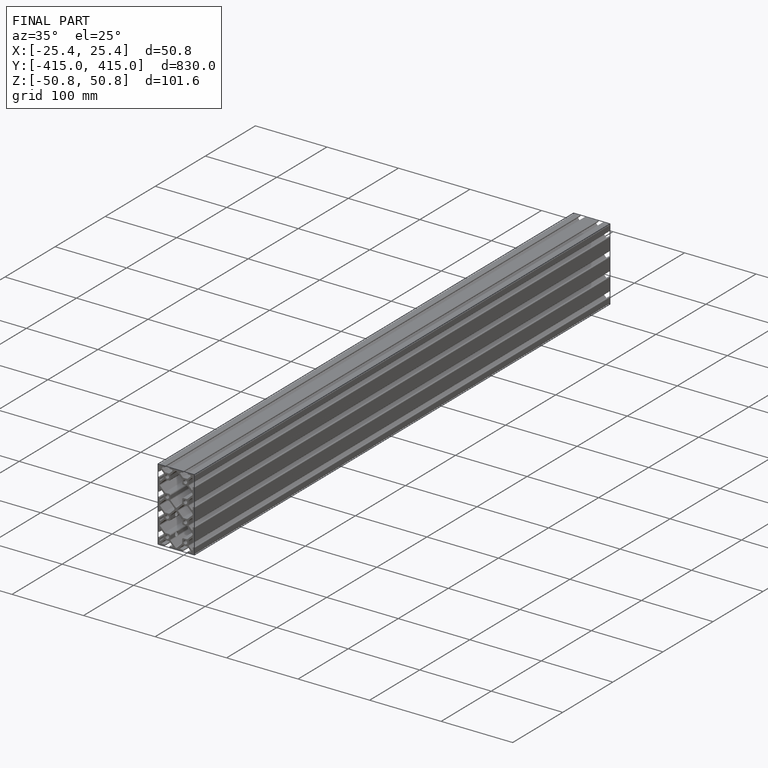
[diagram: finished part — iso view with bounding-box wireframe]
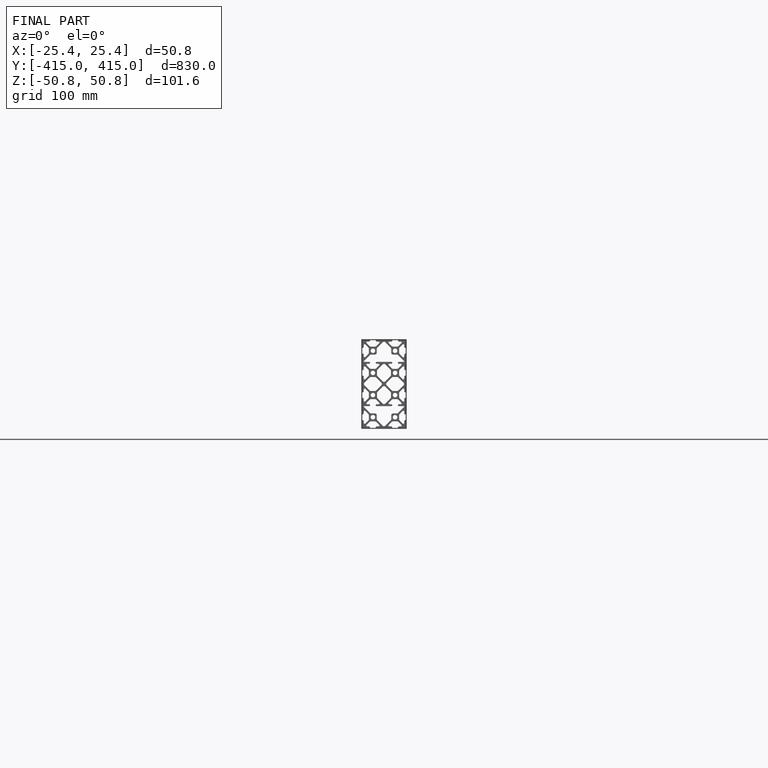
[diagram: finished part — front view with bounding-box wireframe]
